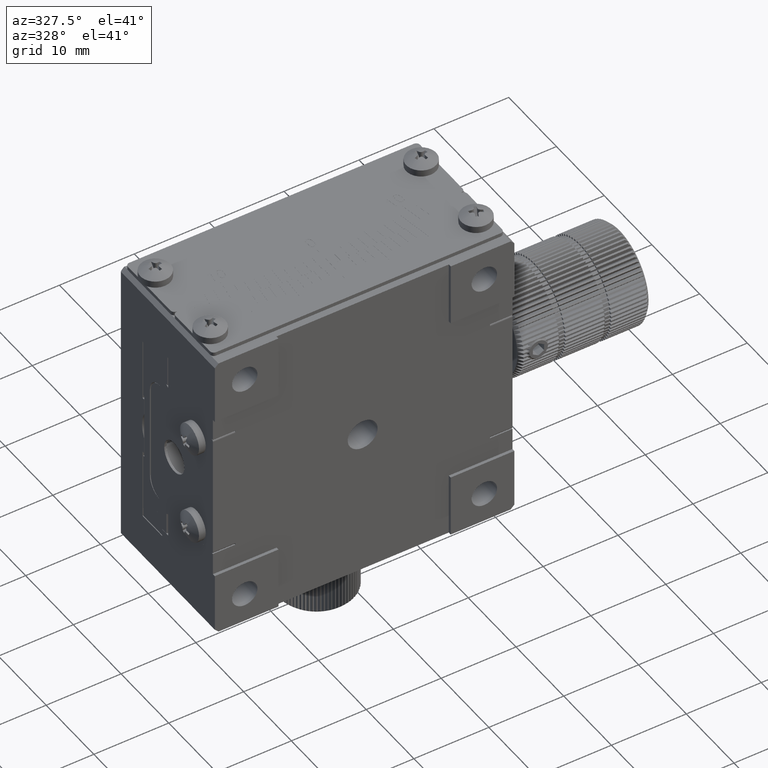
[diagram: clean part render]
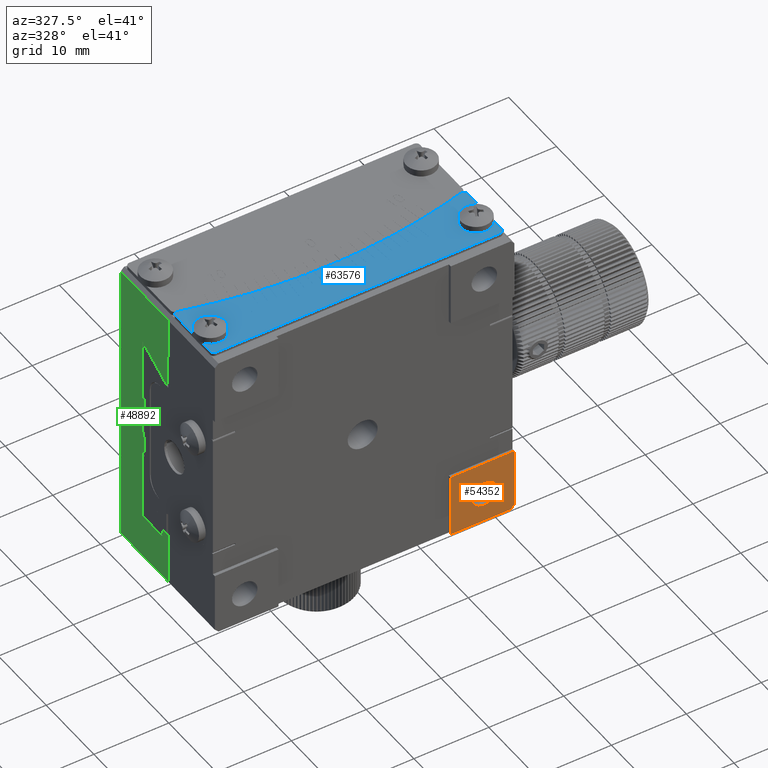
[diagram: same view with three faces highlighted in distinct colors, each labeled with its STEP entity id]
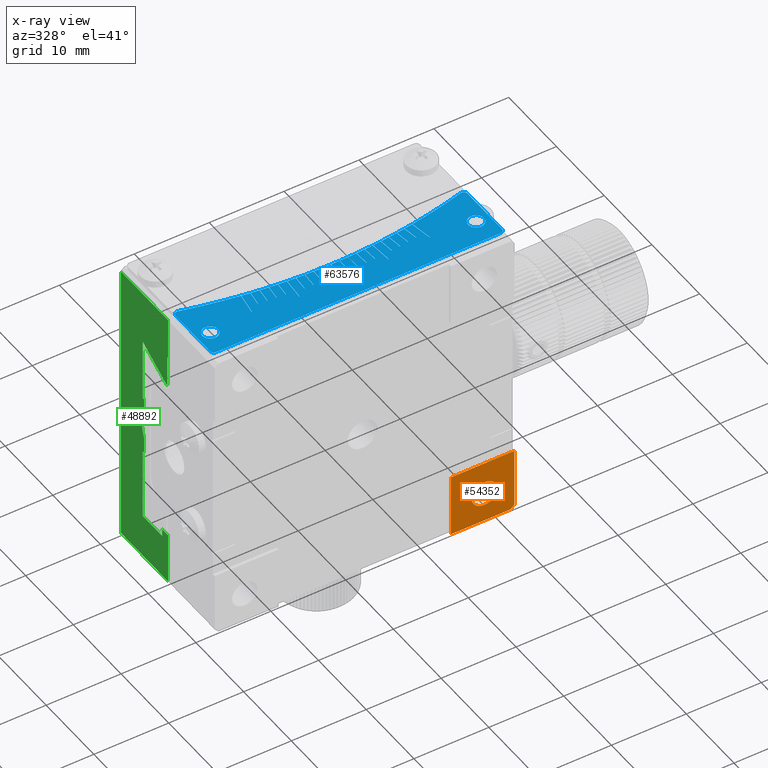
[diagram: x-ray of the same camera — body ghosted, the three highlighted faces saturated]
A machine part, auxiliary view with three faces highlighted in distinct colors.
The next image is the same camera in x-ray (body ghosted, the three faces saturated) — at least one of them is partly hidden behind the body in this view.
Their STEP definitions:

[orange] entity #54352 — the highlighted planar face has unit normal (0, -1, -0).
#19 = ORIENTED_EDGE ( 'NONE', *, *, #24437, .F. ) ;
#1184 = CIRCLE ( 'NONE', #32184, 1.700000000000000178 ) ;
#1277 = PLANE ( 'NONE',  #25525 ) ;
#1536 = DIRECTION ( 'NONE',  ( 0.000000000000000000, -3.061276722312012195E-15, 1.000000000000000000 ) ) ;
#4921 = CARTESIAN_POINT ( 'NONE',  ( -13.94169290550053475, -10.14256600815846809, 8.032748843543261685 ) ) ;
#7385 = CARTESIAN_POINT ( 'NONE',  ( -13.94169290550055074, -10.14256600815846809, 16.53274884354319951 ) ) ;
#10589 = VECTOR ( 'NONE', #25597, 1000.000000000000000 ) ;
#10900 = VERTEX_POINT ( 'NONE', #31351 ) ;
#11993 = DIRECTION ( 'NONE',  ( 0.000000000000000000, 3.491481338843133355E-15, -1.000000000000000000 ) ) ;
#12144 = LINE ( 'NONE', #26535, #27742 ) ;
#14518 = VERTEX_POINT ( 'NONE', #46433 ) ;
#16361 = FACE_BOUND ( 'NONE', #45005, .T. ) ;
#16698 = FACE_OUTER_BOUND ( 'NONE', #52291, .T. ) ;
#16789 = EDGE_CURVE ( 'NONE', #51156, #36445, #56387, .T. ) ;
#19116 = VECTOR ( 'NONE', #21926, 1000.000000000000000 ) ;
#19167 = CARTESIAN_POINT ( 'NONE',  ( -14.44169290550053475, -10.14256600815843967, 8.032748843543208395 ) ) ;
#21926 = DIRECTION ( 'NONE',  ( 0.000000000000000000, 0.000000000000000000, 1.000000000000000000 ) ) ;
#23126 = DIRECTION ( 'NONE',  ( 1.000000000000000000, -7.125593699324845690E-31, 2.040851148208009231E-16 ) ) ;
#24129 = VERTEX_POINT ( 'NONE', #34917 ) ;
#24437 = EDGE_CURVE ( 'NONE', #24129, #58411, #29170, .T. ) ;
#24907 = VECTOR ( 'NONE', #40456, 1000.000000000000000 ) ;
#25525 = AXIS2_PLACEMENT_3D ( 'NONE', #57845, #48128, #11993 ) ;
#25597 = DIRECTION ( 'NONE',  ( -0.7071067811865515695, 0.000000000000000000, -0.7071067811865435759 ) ) ;
#26535 = CARTESIAN_POINT ( 'NONE',  ( -33.94169290550053830, -10.14256600815843790, 8.032748843543208395 ) ) ;
#27742 = VECTOR ( 'NONE', #42287, 1000.000000000000000 ) ;
#28467 = ORIENTED_EDGE ( 'NONE', *, *, #55046, .T. ) ;
#29170 = LINE ( 'NONE', #7385, #52638 ) ;
#31351 = CARTESIAN_POINT ( 'NONE',  ( -17.94169290550053830, -10.14256600815849829, 13.73274884354320768 ) ) ;
#31709 = ORIENTED_EDGE ( 'NONE', *, *, #16789, .F. ) ;
#32184 = AXIS2_PLACEMENT_3D ( 'NONE', #47382, #57756, #1536 ) ;
#34917 = CARTESIAN_POINT ( 'NONE',  ( -22.44169290550054541, -10.14256600815845744, 16.53274884354319951 ) ) ;
#36445 = VERTEX_POINT ( 'NONE', #19167 ) ;
#40456 = DIRECTION ( 'NONE',  ( -4.035766683199858089E-30, 4.664900407751470945E-45, -1.000000000000000000 ) ) ;
#40797 = ORIENTED_EDGE ( 'NONE', *, *, #54600, .F. ) ;
#41160 = EDGE_CURVE ( 'NONE', #10900, #10900, #1184, .T. ) ;
#42287 = DIRECTION ( 'NONE',  ( 1.000000000000000000, 0.000000000000000000, 0.000000000000000000 ) ) ;
#42949 = EDGE_CURVE ( 'NONE', #58411, #51156, #50134, .T. ) ;
#43349 = LINE ( 'NONE', #63087, #19116 ) ;
#45005 = EDGE_LOOP ( 'NONE', ( #59212 ) ) ;
#46433 = CARTESIAN_POINT ( 'NONE',  ( -22.44169290550054541, -10.14256600815843790, 8.032748843543201289 ) ) ;
#47382 = CARTESIAN_POINT ( 'NONE',  ( -17.94169290550053830, -10.14256600815849296, 12.03274884354320662 ) ) ;
#48128 = DIRECTION ( 'NONE',  ( 0.000000000000000000, -1.000000000000000000, -3.491481338843133355E-15 ) ) ;
#50134 = LINE ( 'NONE', #4921, #24907 ) ;
#51156 = VERTEX_POINT ( 'NONE', #60400 ) ;
#51375 = CARTESIAN_POINT ( 'NONE',  ( -13.94169290550049922, -10.14256600815844500, 8.532748843543238593 ) ) ;
#52291 = EDGE_LOOP ( 'NONE', ( #19, #40797, #28467, #31709, #52362 ) ) ;
#52362 = ORIENTED_EDGE ( 'NONE', *, *, #42949, .F. ) ;
#52638 = VECTOR ( 'NONE', #23126, 1000.000000000000000 ) ;
#54352 = ADVANCED_FACE ( 'NONE', ( #16698, #16361 ), #1277, .T. ) ;
#54600 = EDGE_CURVE ( 'NONE', #14518, #24129, #43349, .T. ) ;
#55046 = EDGE_CURVE ( 'NONE', #14518, #36445, #12144, .T. ) ;
#56387 = LINE ( 'NONE', #51375, #10589 ) ;
#57756 = DIRECTION ( 'NONE',  ( 0.000000000000000000, 1.000000000000000000, 3.491481338843133355E-15 ) ) ;
#57845 = CARTESIAN_POINT ( 'NONE',  ( -13.94169290550053475, -10.14256600815843790, 8.032748843543206618 ) ) ;
#58411 = VERTEX_POINT ( 'NONE', #59411 ) ;
#59212 = ORIENTED_EDGE ( 'NONE', *, *, #41160, .T. ) ;
#59411 = CARTESIAN_POINT ( 'NONE',  ( -13.94169290550053475, -10.14256600815846809, 16.53274884354319951 ) ) ;
#60400 = CARTESIAN_POINT ( 'NONE',  ( -13.94169290550053475, -10.14256600815845921, 8.532748843543199513 ) ) ;
#63087 = CARTESIAN_POINT ( 'NONE',  ( -22.44169290550054541, -10.14256600815843790, 8.032748843543195960 ) ) ;

[blue] entity #63576 — the highlighted planar face has unit normal (0, -0, 1).
#33 = CARTESIAN_POINT ( 'NONE',  ( -27.04689738699481794, -2.768879981246100019, 48.53274884354323859 ) ) ;
#185 = ORIENTED_EDGE ( 'NONE', *, *, #47032, .T. ) ;
#242 = CARTESIAN_POINT ( 'NONE',  ( -33.94169290550050988, 69.90478646512218575, 48.53274884354349439 ) ) ;
#397 = CARTESIAN_POINT ( 'NONE',  ( -33.91669290550051130, 69.90478646512218575, 48.53274884354349439 ) ) ;
#447 = VERTEX_POINT ( 'NONE', #38721 ) ;
#466 = CIRCLE ( 'NONE', #31472, 72.99999999999998579 ) ;
#650 = CARTESIAN_POINT ( 'NONE',  ( -44.20273164232804675, -2.370458840869851702, 48.53274884354324570 ) ) ;
#692 = DIRECTION ( 'NONE',  ( -0.1097343110910459635, -0.9939609554551795956, -3.469446951953628783E-15 ) ) ;
#709 = CARTESIAN_POINT ( 'NONE',  ( -33.94169290550050988, 69.90478646512218575, 48.53274884354350149 ) ) ;
#882 = CARTESIAN_POINT ( 'NONE',  ( -33.94169290550050988, 69.90478646512218575, 48.53274884354350149 ) ) ;
#910 = ORIENTED_EDGE ( 'NONE', *, *, #40112, .T. ) ;
#937 = CARTESIAN_POINT ( 'NONE',  ( -38.50044989413465402, -2.952730200755038226, 48.53274884354323859 ) ) ;
#1015 = CARTESIAN_POINT ( 'NONE',  ( -33.94169290550050988, 69.90478646512218575, 48.53274884354350149 ) ) ;
#1099 = VERTEX_POINT ( 'NONE', #7668 ) ;
#1219 = DIRECTION ( 'NONE',  ( -2.859620781426167795E-30, 3.491481338843141638E-15, -1.000000000000000000 ) ) ;
#1358 = CARTESIAN_POINT ( 'NONE',  ( -29.33303458044495571, -2.949590674778582056, 48.53274884354324570 ) ) ;
#1654 = VERTEX_POINT ( 'NONE', #8884 ) ;
#1726 = ORIENTED_EDGE ( 'NONE', *, *, #61097, .T. ) ;
#1814 = VERTEX_POINT ( 'NONE', #33606 ) ;
#2073 = CARTESIAN_POINT ( 'NONE',  ( -30.38373705705758709, -5.010772219688040430, 48.53274884354323149 ) ) ;
#2212 = VECTOR ( 'NONE', #32156, 1000.000000000000000 ) ;
#2264 = EDGE_CURVE ( 'NONE', #33732, #44829, #60517, .T. ) ;
#2294 = ORIENTED_EDGE ( 'NONE', *, *, #51743, .T. ) ;
#2334 = EDGE_CURVE ( 'NONE', #55492, #60109, #56729, .T. ) ;
#2364 = DIRECTION ( 'NONE',  ( -0.1409012319375813060, 0.9900236577165577589, 3.469446951953626022E-15 ) ) ;
#2444 = CARTESIAN_POINT ( 'NONE',  ( -36.32248736590540972, -5.057416014621008316, 48.53274884354323149 ) ) ;
#2620 = VECTOR ( 'NONE', #65528, 1000.000000000000000 ) ;
#2801 = EDGE_CURVE ( 'NONE', #2978, #37175, #53709, .T. ) ;
#2961 = ORIENTED_EDGE ( 'NONE', *, *, #29971, .T. ) ;
#2978 = VERTEX_POINT ( 'NONE', #52360 ) ;
#3100 = VECTOR ( 'NONE', #32924, 1000.000000000000227 ) ;
#3399 = VECTOR ( 'NONE', #61133, 1000.000000000000114 ) ;
#3459 = DIRECTION ( 'NONE',  ( 2.169367489357782465E-30, -3.491481338843142033E-15, 1.000000000000000000 ) ) ;
#3512 = DIRECTION ( 'NONE',  ( -0.9969173337331282969, -0.07845909572784010022, 0.000000000000000000 ) ) ;
#3596 = LINE ( 'NONE', #44134, #34615 ) ;
#3621 = DIRECTION ( 'NONE',  ( 0.000000000000000000, 1.000000000000000000, 3.516973622528321854E-15 ) ) ;
#3628 = ORIENTED_EDGE ( 'NONE', *, *, #47552, .T. ) ;
#3658 = VERTEX_POINT ( 'NONE', #59743 ) ;
#3755 = VECTOR ( 'NONE', #48510, 1000.000000000000114 ) ;
#3840 = CARTESIAN_POINT ( 'NONE',  ( -27.95387903271037544, -5.858965153576645157, 48.53274884354323149 ) ) ;
#3891 = ORIENTED_EDGE ( 'NONE', *, *, #31524, .T. ) ;
#3911 = LINE ( 'NONE', #14316, #51370 ) ;
#3927 = LINE ( 'NONE', #25356, #52673 ) ;
#3969 = DIRECTION ( 'NONE',  ( 0.1564344650402297310, 0.9876883405951378814, 4.625929269271472700E-15 ) ) ;
#3996 = CARTESIAN_POINT ( 'NONE',  ( -52.94169290550050988, -8.342566008158575741, 48.53274884354321728 ) ) ;
#4114 = LINE ( 'NONE', #9176, #31984 ) ;
#4128 = DIRECTION ( 'NONE',  ( -0.1253332335643012607, 0.9921147013144782090, 3.469446951953604328E-15 ) ) ;
#4160 = DIRECTION ( 'NONE',  ( 0.000000000000000000, 1.000000000000000000, 3.516973622528321854E-15 ) ) ;
#4236 = CARTESIAN_POINT ( 'NONE',  ( -44.48453410620322046, -4.350506156302961003, 48.53274884354323859 ) ) ;
#4348 = ORIENTED_EDGE ( 'NONE', *, *, #31656, .T. ) ;
#4522 = AXIS2_PLACEMENT_3D ( 'NONE', #46374, #60753, #10232 ) ;
#4638 = CARTESIAN_POINT ( 'NONE',  ( -37.49964875394343977, -5.010772219688027995, 48.53274884354323149 ) ) ;
#4649 = VECTOR ( 'NONE', #14600, 1000.000000000000114 ) ;
#4754 = VECTOR ( 'NONE', #33513, 1000.000000000000114 ) ;
#4780 = ORIENTED_EDGE ( 'NONE', *, *, #40586, .T. ) ;
#4911 = DIRECTION ( 'NONE',  ( -2.859620781426167795E-30, 3.491481338843141638E-15, -1.000000000000000000 ) ) ;
#4947 = CARTESIAN_POINT ( 'NONE',  ( -32.73864725854215862, -5.085564007775629669, 48.53274884354323149 ) ) ;
#5197 = EDGE_CURVE ( 'NONE', #20620, #1814, #46667, .T. ) ;
#5267 = DIRECTION ( 'NONE',  ( -0.03141075907812933277, 0.9995065603657314890, 3.469446951953618528E-15 ) ) ;
#5417 = VERTEX_POINT ( 'NONE', #50301 ) ;
#5458 = DIRECTION ( 'NONE',  ( 0.000000000000000000, 1.000000000000000000, 3.516973622528321854E-15 ) ) ;
#5559 = CIRCLE ( 'NONE', #11991, 72.99999999999998579 ) ;
#5568 = CARTESIAN_POINT ( 'NONE',  ( -26.85868076035778529, -4.760003910452254239, 48.53274884354323149 ) ) ;
#5585 = VERTEX_POINT ( 'NONE', #11123 ) ;
#5763 = ORIENTED_EDGE ( 'NONE', *, *, #44254, .T. ) ;
#5789 = EDGE_CURVE ( 'NONE', #48969, #54207, #13422, .T. ) ;
#5819 = DIRECTION ( 'NONE',  ( -0.9876883405951580874, 0.1564344650401019166, 0.000000000000000000 ) ) ;
#5877 = DIRECTION ( 'NONE',  ( -0.07845909572784631747, 0.9969173337331278528, 2.312964634635739900E-15 ) ) ;
#5905 = AXIS2_PLACEMENT_3D ( 'NONE', #3996, #23203, #60259 ) ;
#5940 = CARTESIAN_POINT ( 'NONE',  ( -44.25223282521388768, -2.363413779272967474, 48.53274884354324570 ) ) ;
#6254 = CARTESIAN_POINT ( 'NONE',  ( -14.94169290550051343, -1.096974076430593303, 48.53274884354325280 ) ) ;
#6316 = ORIENTED_EDGE ( 'NONE', *, *, #20555, .T. ) ;
#6319 = EDGE_CURVE ( 'NONE', #9413, #10243, #30752, .T. ) ;
#6510 = DIRECTION ( 'NONE',  ( 0.1564344650402308412, -0.9876883405951376593, -4.625929269271471912E-15 ) ) ;
#6600 = CARTESIAN_POINT ( 'NONE',  ( -38.55035123055606050, -2.949590674778575394, 48.53274884354325280 ) ) ;
#6616 = VECTOR ( 'NONE', #24177, 1000.000000000000227 ) ;
#6824 = VERTEX_POINT ( 'NONE', #45644 ) ;
#6839 = LINE ( 'NONE', #53366, #60120 ) ;
#6859 = CARTESIAN_POINT ( 'NONE',  ( -22.49728541871686360, -2.192547308578846277, 48.53274884354324570 ) ) ;
#6919 = ORIENTED_EDGE ( 'NONE', *, *, #2264, .T. ) ;
#6976 = EDGE_CURVE ( 'NONE', #36196, #45152, #17454, .T. ) ;
#7003 = CARTESIAN_POINT ( 'NONE',  ( -40.78671032577605615, -2.773585396912012335, 48.53274884354323859 ) ) ;
#7027 = CARTESIAN_POINT ( 'NONE',  ( -23.39885170479781351, -4.350506156302974325, 48.53274884354323149 ) ) ;
#7073 = CARTESIAN_POINT ( 'NONE',  ( -45.33671597525441399, -2.200369031830878619, 48.53274884354324570 ) ) ;
#7172 = ORIENTED_EDGE ( 'NONE', *, *, #9328, .T. ) ;
#7339 = ORIENTED_EDGE ( 'NONE', *, *, #60850, .T. ) ;
#7411 = VECTOR ( 'NONE', #40922, 1000.000000000000000 ) ;
#7525 = CARTESIAN_POINT ( 'NONE',  ( -24.56650379223980352, -4.506945217236296486, 48.53274884354323859 ) ) ;
#7568 = VECTOR ( 'NONE', #42102, 1000.000000000000114 ) ;
#7576 = AXIS2_PLACEMENT_3D ( 'NONE', #28770, #8655, #3621 ) ;
#7668 = CARTESIAN_POINT ( 'NONE',  ( -39.64428362442044573, -2.872136107163650198, 48.53274884354328123 ) ) ;
#7804 = VERTEX_POINT ( 'NONE', #52505 ) ;
#8049 = DIRECTION ( 'NONE',  ( 0.000000000000000000, 1.000000000000000000, 3.516973622528321854E-15 ) ) ;
#8115 = AXIS2_PLACEMENT_3D ( 'NONE', #60691, #3459, #14840 ) ;
#8197 = AXIS2_PLACEMENT_3D ( 'NONE', #40859, #51213, #29820 ) ;
#8352 = EDGE_CURVE ( 'NONE', #36282, #30086, #18875, .T. ) ;
#8358 = CARTESIAN_POINT ( 'NONE',  ( -24.76756452430268851, -2.516449152929117972, 48.53274884354324570 ) ) ;
#8510 = CARTESIAN_POINT ( 'NONE',  ( -31.61087377311389801, -5.058986552574918250, 48.53274884354323149 ) ) ;
#8520 = ORIENTED_EDGE ( 'NONE', *, *, #22177, .T. ) ;
#8655 = DIRECTION ( 'NONE',  ( -2.859620781426167795E-30, 3.491481338843141638E-15, -1.000000000000000000 ) ) ;
#8884 = CARTESIAN_POINT ( 'NONE',  ( -28.23910218658057403, -2.872136107163643981, 48.53274884354328123 ) ) ;
#8885 = LINE ( 'NONE', #3840, #31030 ) ;
#8924 = VECTOR ( 'NONE', #18092, 1000.000000000000114 ) ;
#9024 = CARTESIAN_POINT ( 'NONE',  ( -45.85540378740486034, -5.155612330364281348, 48.53274884354323149 ) ) ;
#9039 = DIRECTION ( 'NONE',  ( 0.000000000000000000, 1.000000000000000000, 0.000000000000000000 ) ) ;
#9068 = DIRECTION ( 'NONE',  ( 0.000000000000000000, 1.000000000000000000, 3.516973622528321854E-15 ) ) ;
#9168 = VECTOR ( 'NONE', #4128, 1000.000000000000000 ) ;
#9176 = CARTESIAN_POINT ( 'NONE',  ( -53.44169290550052409, -0.4425660081585763850, 48.53274884354325280 ) ) ;
#9182 = CIRCLE ( 'NONE', #37017, 72.99999999999998579 ) ;
#9235 = ORIENTED_EDGE ( 'NONE', *, *, #6976, .T. ) ;
#9242 = DIRECTION ( 'NONE',  ( 0.000000000000000000, 1.000000000000000000, 3.516973622528321854E-15 ) ) ;
#9328 = EDGE_CURVE ( 'NONE', #26698, #17942, #53041, .T. ) ;
#9359 = LINE ( 'NONE', #30471, #64187 ) ;
#9413 = VERTEX_POINT ( 'NONE', #5568 ) ;
#9478 = AXIS2_PLACEMENT_3D ( 'NONE', #65120, #15225, #4160 ) ;
#9747 = DIRECTION ( 'NONE',  ( -1.000000000000000000, -7.574306106185697085E-45, 2.169367489357782465E-30 ) ) ;
#10060 = VERTEX_POINT ( 'NONE', #61503 ) ;
#10198 = CIRCLE ( 'NONE', #31574, 1.049999999999998934 ) ;
#10232 = DIRECTION ( 'NONE',  ( 0.000000000000000000, 1.000000000000000000, 3.516973622528321854E-15 ) ) ;
#10243 = VERTEX_POINT ( 'NONE', #35662 ) ;
#10272 = CARTESIAN_POINT ( 'NONE',  ( -33.96669290550051556, -6.095209254055768966, 48.53274884354323149 ) ) ;
#10347 = LINE ( 'NONE', #45513, #61199 ) ;
#10410 = ORIENTED_EDGE ( 'NONE', *, *, #57078, .T. ) ;
#10425 = VERTEX_POINT ( 'NONE', #42969 ) ;
#10638 = AXIS2_PLACEMENT_3D ( 'NONE', #17183, #33267, #9068 ) ;
#10747 = AXIS2_PLACEMENT_3D ( 'NONE', #50535, #54554, #9039 ) ;
#10822 = DIRECTION ( 'NONE',  ( 0.1409012319375829991, -0.9900236577165575369, -3.469446951953625233E-15 ) ) ;
#11081 = LINE ( 'NONE', #56911, #2212 ) ;
#11098 = CARTESIAN_POINT ( 'NONE',  ( -22.02798202359616653, -5.155612330364267137, 48.53274884354323149 ) ) ;
#11123 = CARTESIAN_POINT ( 'NONE',  ( -52.94169290550050988, -8.842566008158575741, 48.53274884354321728 ) ) ;
#11648 = CARTESIAN_POINT ( 'NONE',  ( -25.90623964172086957, -2.651615670358695276, 48.53274884354323859 ) ) ;
#11659 = CARTESIAN_POINT ( 'NONE',  ( -35.14473855245888245, -5.085564007775642104, 48.53274884354323149 ) ) ;
#11741 = DIRECTION ( 'NONE',  ( -0.9876883405951580874, -0.1564344650401019166, 0.000000000000000000 ) ) ;
#11791 = VERTEX_POINT ( 'NONE', #22468 ) ;
#11794 = EDGE_CURVE ( 'NONE', #57966, #57471, #52609, .T. ) ;
#11917 = LINE ( 'NONE', #52776, #51700 ) ;
#11972 = DIRECTION ( 'NONE',  ( -0.07845909572784552644, -0.9969173337331278528, -2.312964634635750944E-15 ) ) ;
#11991 = AXIS2_PLACEMENT_3D ( 'NONE', #60219, #14033, #35125 ) ;
#12118 = VERTEX_POINT ( 'NONE', #22384 ) ;
#12182 = DIRECTION ( 'NONE',  ( -0.09410831331851451931, 0.9955619646030799963, 3.469446951953624838E-15 ) ) ;
#12310 = DIRECTION ( 'NONE',  ( 0.000000000000000000, 1.000000000000000000, 0.000000000000000000 ) ) ;
#12319 = DIRECTION ( 'NONE',  ( -0.9998766324816604767, -0.01570731731182244476, 0.000000000000000000 ) ) ;
#12325 = CARTESIAN_POINT ( 'NONE',  ( -29.25735487780774591, -4.948783657611589781, 48.53274884354323149 ) ) ;
#12367 = EDGE_CURVE ( 'NONE', #6824, #5417, #58409, .T. ) ;
#12677 = VERTEX_POINT ( 'NONE', #23117 ) ;
#12699 = EDGE_CURVE ( 'NONE', #1654, #34188, #22538, .T. ) ;
#12720 = DIRECTION ( 'NONE',  ( 0.000000000000000000, 1.000000000000000000, 3.516973622528321854E-15 ) ) ;
#12762 = ORIENTED_EDGE ( 'NONE', *, *, #33693, .T. ) ;
#12819 = LINE ( 'NONE', #21888, #52355 ) ;
#12860 = VERTEX_POINT ( 'NONE', #40839 ) ;
#12995 = AXIS2_PLACEMENT_3D ( 'NONE', #56681, #30961, #5458 ) ;
#13004 = CARTESIAN_POINT ( 'NONE',  ( -35.06333008621115255, -3.086596108677910788, 48.53274884354323859 ) ) ;
#13134 = DIRECTION ( 'NONE',  ( 0.000000000000000000, 1.000000000000000000, 3.516973622528321854E-15 ) ) ;
#13271 = VERTEX_POINT ( 'NONE', #38131 ) ;
#13388 = DIRECTION ( 'NONE',  ( 0.1253332335643012607, -0.9921147013144782090, -3.469446951953604328E-15 ) ) ;
#13418 = EDGE_CURVE ( 'NONE', #51497, #55492, #41096, .T. ) ;
#13422 = LINE ( 'NONE', #28520, #38947 ) ;
#13531 = VERTEX_POINT ( 'NONE', #15937 ) ;
#13572 = CARTESIAN_POINT ( 'NONE',  ( -37.44970426019533960, -5.013127542223507760, 48.53274884354323149 ) ) ;
#13642 = DIRECTION ( 'NONE',  ( -0.03141075907812933277, -0.9995065603657314890, -3.469446951953618528E-15 ) ) ;
#13668 = CARTESIAN_POINT ( 'NONE',  ( -41.02470505064324158, -4.760003910452252462, 48.53274884354323149 ) ) ;
#13770 = VERTEX_POINT ( 'NONE', #19567 ) ;
#13813 = CARTESIAN_POINT ( 'NONE',  ( -24.76756452430269206, -2.516449152929103761, 48.53274884354324570 ) ) ;
#13910 = VECTOR ( 'NONE', #11972, 1000.000000000000114 ) ;
#14033 = DIRECTION ( 'NONE',  ( -2.859620781426167795E-30, 3.491481338843141638E-15, -1.000000000000000000 ) ) ;
#14258 = VERTEX_POINT ( 'NONE', #57274 ) ;
#14316 = CARTESIAN_POINT ( 'NONE',  ( -35.09474472083479668, -5.086349373641232852, 48.53274884354323149 ) ) ;
#14408 = CARTESIAN_POINT ( 'NONE',  ( -25.95593768949363422, -2.657102385913240106, 48.53274884354324570 ) ) ;
#14600 = DIRECTION ( 'NONE',  ( -0.9980267284282838824, -0.06279051952911823831, 0.000000000000000000 ) ) ;
#14757 = EDGE_CURVE ( 'NONE', #50387, #48239, #11917, .T. ) ;
#14794 = LINE ( 'NONE', #65353, #20046 ) ;
#14840 = DIRECTION ( 'NONE',  ( 0.000000000000000000, -1.000000000000000000, -3.491481338843142033E-15 ) ) ;
#14957 = CARTESIAN_POINT ( 'NONE',  ( -14.94169290550051343, -8.842566008158575741, 48.53274884354321728 ) ) ;
#15046 = EDGE_CURVE ( 'NONE', #50604, #63884, #55720, .T. ) ;
#15119 = CARTESIAN_POINT ( 'NONE',  ( -30.47794995847687005, -3.012992469764080639, 48.53274884354324570 ) ) ;
#15158 = CIRCLE ( 'NONE', #63278, 0.5000000000000004441 ) ;
#15225 = DIRECTION ( 'NONE',  ( -2.859620781426167795E-30, 3.491481338843141638E-15, -1.000000000000000000 ) ) ;
#15352 = VECTOR ( 'NONE', #5819, 1000.000000000000114 ) ;
#15678 = CIRCLE ( 'NONE', #30668, 72.99999999999998579 ) ;
#15760 = EDGE_CURVE ( 'NONE', #37244, #12118, #24771, .T. ) ;
#15832 = VERTEX_POINT ( 'NONE', #24440 ) ;
#15937 = CARTESIAN_POINT ( 'NONE',  ( -37.49964875394343267, -5.010772219688027107, 48.53274884354323149 ) ) ;
#16158 = CARTESIAN_POINT ( 'NONE',  ( -23.63115298578714274, -2.363413779272987902, 48.53274884354324570 ) ) ;
#16238 = VECTOR ( 'NONE', #32763, 1000.000000000000114 ) ;
#16404 = ORIENTED_EDGE ( 'NONE', *, *, #2801, .T. ) ;
#16563 = ORIENTED_EDGE ( 'NONE', *, *, #26461, .T. ) ;
#16564 = ORIENTED_EDGE ( 'NONE', *, *, #15046, .T. ) ;
#16676 = EDGE_CURVE ( 'NONE', #12677, #56393, #63996, .T. ) ;
#16811 = ORIENTED_EDGE ( 'NONE', *, *, #66233, .F. ) ;
#16899 = EDGE_CURVE ( 'NONE', #11791, #63789, #28260, .T. ) ;
#16964 = EDGE_CURVE ( 'NONE', #57471, #15832, #66191, .T. ) ;
#17011 = CARTESIAN_POINT ( 'NONE',  ( -22.02798202359616653, -5.155612330364267137, 48.53274884354323149 ) ) ;
#17111 = EDGE_CURVE ( 'NONE', #20149, #62693, #42323, .T. ) ;
#17142 = ORIENTED_EDGE ( 'NONE', *, *, #41112, .T. ) ;
#17183 = CARTESIAN_POINT ( 'NONE',  ( -33.94169290550050988, 69.90478646512218575, 48.53274884354350149 ) ) ;
#17296 = VERTEX_POINT ( 'NONE', #13813 ) ;
#17330 = VECTOR ( 'NONE', #9747, 1000.000000000000000 ) ;
#17425 = CARTESIAN_POINT ( 'NONE',  ( -42.14691674368949492, -4.645024296823605070, 48.53274884354323149 ) ) ;
#17454 = LINE ( 'NONE', #42268, #62559 ) ;
#17469 = VERTEX_POINT ( 'NONE', #15119 ) ;
#17488 = EDGE_CURVE ( 'NONE', #59548, #27290, #40280, .T. ) ;
#17893 = CARTESIAN_POINT ( 'NONE',  ( -14.44169290550051166, -8.842566008158575741, 48.53274884354321728 ) ) ;
#17942 = VERTEX_POINT ( 'NONE', #650 ) ;
#18061 = CARTESIAN_POINT ( 'NONE',  ( -33.94169290550050988, 69.90478646512218575, 48.53274884354349439 ) ) ;
#18092 = DIRECTION ( 'NONE',  ( -0.1564344650402304526, -0.9876883405951377704, -4.625929269271494788E-15 ) ) ;
#18111 = ORIENTED_EDGE ( 'NONE', *, *, #16676, .T. ) ;
#18121 = LINE ( 'NONE', #34218, #36627 ) ;
#18875 = CIRCLE ( 'NONE', #21011, 72.99999999999998579 ) ;
#18884 = ORIENTED_EDGE ( 'NONE', *, *, #59653, .T. ) ;
#19078 = CARTESIAN_POINT ( 'NONE',  ( -44.53403528908906139, -4.343461094706083436, 48.53274884354323859 ) ) ;
#19245 = DIRECTION ( 'NONE',  ( -0.1097343110910452141, 0.9939609554551797066, 3.469446951953605117E-15 ) ) ;
#19308 = LINE ( 'NONE', #19646, #65331 ) ;
#19312 = DIRECTION ( 'NONE',  ( -0.9998766324816605877, 0.01570731731181808713, 0.000000000000000000 ) ) ;
#19339 = ORIENTED_EDGE ( 'NONE', *, *, #11794, .T. ) ;
#19362 = ORIENTED_EDGE ( 'NONE', *, *, #62555, .T. ) ;
#19421 = ORIENTED_EDGE ( 'NONE', *, *, #36268, .T. ) ;
#19445 = ORIENTED_EDGE ( 'NONE', *, *, #8352, .T. ) ;
#19477 = DIRECTION ( 'NONE',  ( -0.1409012319375829991, -0.9900236577165575369, -3.469446951953625233E-15 ) ) ;
#19492 = CARTESIAN_POINT ( 'NONE',  ( -37.40543585252414971, -3.012992469764073977, 48.53274884354324570 ) ) ;
#19567 = CARTESIAN_POINT ( 'NONE',  ( -29.20745354138633232, -4.945644131635131835, 48.53274884354323149 ) ) ;
#19590 = ORIENTED_EDGE ( 'NONE', *, *, #46148, .T. ) ;
#19644 = VERTEX_POINT ( 'NONE', #12325 ) ;
#19646 = CARTESIAN_POINT ( 'NONE',  ( -43.36648775382694510, -4.500678555558093485, 48.53274884354323859 ) ) ;
#19657 = VERTEX_POINT ( 'NONE', #28734 ) ;
#19686 = VERTEX_POINT ( 'NONE', #34083 ) ;
#19715 = CARTESIAN_POINT ( 'NONE',  ( -41.92744812150739619, -2.657102385913240106, 48.53274884354324570 ) ) ;
#19812 = DIRECTION ( 'NONE',  ( 0.000000000000000000, 1.000000000000000000, 3.516973622528321854E-15 ) ) ;
#19993 = DIRECTION ( 'NONE',  ( -0.9969173337331282969, 0.07845909572784010022, 0.000000000000000000 ) ) ;
#20028 = ORIENTED_EDGE ( 'NONE', *, *, #37934, .T. ) ;
#20046 = VECTOR ( 'NONE', #19477, 1000.000000000000000 ) ;
#20149 = VERTEX_POINT ( 'NONE', #49271 ) ;
#20349 = DIRECTION ( 'NONE',  ( 0.04710645070964465664, 0.9988898749619699036, 3.469446951953600778E-15 ) ) ;
#20435 = CIRCLE ( 'NONE', #59966, 72.99999999999998579 ) ;
#20519 = LINE ( 'NONE', #16158, #50981 ) ;
#20555 = EDGE_CURVE ( 'NONE', #29030, #55865, #34505, .T. ) ;
#20620 = VERTEX_POINT ( 'NONE', #49875 ) ;
#20773 = AXIS2_PLACEMENT_3D ( 'NONE', #44744, #44418, #9242 ) ;
#20808 = ORIENTED_EDGE ( 'NONE', *, *, #28604, .T. ) ;
#20975 = CARTESIAN_POINT ( 'NONE',  ( -51.69169290550050988, -5.642566008158571123, 48.53274884354323859 ) ) ;
#21011 = AXIS2_PLACEMENT_3D ( 'NONE', #882, #41745, #30735 ) ;
#21015 = DIRECTION ( 'NONE',  ( 0.000000000000000000, 1.000000000000000000, 0.000000000000000000 ) ) ;
#21154 = EDGE_CURVE ( 'NONE', #45432, #45432, #10198, .T. ) ;
#21181 = LINE ( 'NONE', #52659, #49573 ) ;
#21315 = EDGE_CURVE ( 'NONE', #50918, #35605, #28663, .T. ) ;
#21350 = LINE ( 'NONE', #11659, #58002 ) ;
#21413 = ORIENTED_EDGE ( 'NONE', *, *, #32834, .T. ) ;
#21556 = ORIENTED_EDGE ( 'NONE', *, *, #41959, .F. ) ;
#21642 = CARTESIAN_POINT ( 'NONE',  ( -39.92950677829064432, -5.858965153576645157, 48.53274884354323149 ) ) ;
#21695 = DIRECTION ( 'NONE',  ( 0.01570731731182286109, 0.9998766324816604767, 3.469446951953612217E-15 ) ) ;
#21701 = EDGE_CURVE ( 'NONE', #5585, #23661, #52997, .T. ) ;
#21888 = CARTESIAN_POINT ( 'NONE',  ( -26.90845885858794517, -4.764709326118180321, 48.53274884354323149 ) ) ;
#21954 = CARTESIAN_POINT ( 'NONE',  ( -31.67369529127016392, -3.059973431843450609, 48.53274884354324570 ) ) ;
#22066 = ORIENTED_EDGE ( 'NONE', *, *, #35121, .T. ) ;
#22129 = DIRECTION ( 'NONE',  ( -0.9939609554551950277, 0.1097343110909054231, 0.000000000000000000 ) ) ;
#22153 = DIRECTION ( 'NONE',  ( 0.07845909572784631747, -0.9969173337331278528, -2.312964634635739900E-15 ) ) ;
#22168 = ORIENTED_EDGE ( 'NONE', *, *, #36038, .T. ) ;
#22177 = EDGE_CURVE ( 'NONE', #34188, #13770, #53512, .T. ) ;
#22260 = VERTEX_POINT ( 'NONE', #54842 ) ;
#22384 = CARTESIAN_POINT ( 'NONE',  ( -40.83648842400621248, -2.768879981246086253, 48.53274884354325280 ) ) ;
#22468 = CARTESIAN_POINT ( 'NONE',  ( -36.32248736590540972, -5.057416014621008316, 48.53274884354323149 ) ) ;
#22491 = EDGE_CURVE ( 'NONE', #49663, #14258, #63148, .T. ) ;
#22538 = CIRCLE ( 'NONE', #59948, 72.99999999999998579 ) ;
#22587 = ORIENTED_EDGE ( 'NONE', *, *, #59822, .T. ) ;
#22677 = CARTESIAN_POINT ( 'NONE',  ( -23.34935052191197613, -4.343461094706096759, 48.53274884354323149 ) ) ;
#22840 = CARTESIAN_POINT ( 'NONE',  ( -33.91669290550051130, -3.095209254055764081, 48.53274884354323859 ) ) ;
#22949 = CARTESIAN_POINT ( 'NONE',  ( -30.43368155080568727, -5.013127542223521083, 48.53274884354323149 ) ) ;
#23111 = CARTESIAN_POINT ( 'NONE',  ( -27.04689738699481438, -2.768879981246072930, 48.53274884354324570 ) ) ;
#23117 = CARTESIAN_POINT ( 'NONE',  ( -45.38610039228415616, -2.192547308578825405, 48.53274884354319596 ) ) ;
#23190 = DIRECTION ( 'NONE',  ( -2.859620781426167795E-30, 3.491481338843141638E-15, -1.000000000000000000 ) ) ;
#23203 = DIRECTION ( 'NONE',  ( -2.859620781426167795E-30, 3.491481338843141638E-15, -1.000000000000000000 ) ) ;
#23517 = CIRCLE ( 'NONE', #54535, 72.99999999999998579 ) ;
#23556 = VERTEX_POINT ( 'NONE', #13572 ) ;
#23661 = VERTEX_POINT ( 'NONE', #44707 ) ;
#23776 = CARTESIAN_POINT ( 'NONE',  ( -33.94169290550050988, 69.90478646512218575, 48.53274884354350149 ) ) ;
#23832 = CARTESIAN_POINT ( 'NONE',  ( -24.56650379223979996, -4.506945217236293821, 48.53274884354323149 ) ) ;
#24073 = DIRECTION ( 'NONE',  ( 0.06279051952931567759, 0.9980267284282714479, 3.469446951953625627E-15 ) ) ;
#24177 = DIRECTION ( 'NONE',  ( 0.09410831331851622628, -0.9955619646030797742, -3.469446951953624050E-15 ) ) ;
#24253 = CARTESIAN_POINT ( 'NONE',  ( -33.94169290550050988, 69.90478646512218575, 48.53274884354350149 ) ) ;
#24425 = DIRECTION ( 'NONE',  ( -0.04710645070964292191, 0.9988898749619699036, 3.469446951953600778E-15 ) ) ;
#24440 = CARTESIAN_POINT ( 'NONE',  ( -43.06621555163260240, -2.522715814607313867, 48.53274884354325280 ) ) ;
#24554 = FACE_BOUND ( 'NONE', #58547, .T. ) ;
#24771 = LINE ( 'NONE', #41187, #24876 ) ;
#24876 = VECTOR ( 'NONE', #36161, 1000.000000000000114 ) ;
#25062 = LINE ( 'NONE', #45500, #31567 ) ;
#25136 = ORIENTED_EDGE ( 'NONE', *, *, #57005, .T. ) ;
#25253 = LINE ( 'NONE', #45688, #55957 ) ;
#25356 = CARTESIAN_POINT ( 'NONE',  ( -39.87966091160398463, -5.862888108363037531, 48.53274884354323149 ) ) ;
#25376 = EDGE_CURVE ( 'NONE', #50220, #20620, #27183, .T. ) ;
#25397 = DIRECTION ( 'NONE',  ( 0.1097343110910452141, -0.9939609554551797066, -3.469446951953605117E-15 ) ) ;
#25632 = VERTEX_POINT ( 'NONE', #62545 ) ;
#25719 = EDGE_CURVE ( 'NONE', #62693, #50387, #53816, .T. ) ;
#26291 = ORIENTED_EDGE ( 'NONE', *, *, #13418, .T. ) ;
#26393 = EDGE_CURVE ( 'NONE', #45656, #51497, #56932, .T. ) ;
#26461 = EDGE_CURVE ( 'NONE', #48239, #59548, #55749, .T. ) ;
#26485 = DIRECTION ( 'NONE',  ( 1.000000000000000000, 5.259020551576894849E-33, 1.836177211642329098E-47 ) ) ;
#26613 = EDGE_CURVE ( 'NONE', #23556, #13531, #62396, .T. ) ;
#26698 = VERTEX_POINT ( 'NONE', #54984 ) ;
#26727 = LINE ( 'NONE', #57182, #37678 ) ;
#26730 = VECTOR ( 'NONE', #6510, 1000.000000000000114 ) ;
#26950 = ORIENTED_EDGE ( 'NONE', *, *, #54679, .T. ) ;
#27183 = LINE ( 'NONE', #7073, #8924 ) ;
#27224 = VERTEX_POINT ( 'NONE', #46789 ) ;
#27290 = VERTEX_POINT ( 'NONE', #37791 ) ;
#27292 = DIRECTION ( 'NONE',  ( -0.9939609554551969151, -0.1097343110908903241, 0.000000000000000000 ) ) ;
#27373 = VERTEX_POINT ( 'NONE', #6600 ) ;
#27526 = ORIENTED_EDGE ( 'NONE', *, *, #65069, .T. ) ;
#27528 = ORIENTED_EDGE ( 'NONE', *, *, #17111, .T. ) ;
#27558 = DIRECTION ( 'NONE',  ( -0.9995065603657293796, 0.03141075907819843721, 0.000000000000000000 ) ) ;
#27604 = VERTEX_POINT ( 'NONE', #10272 ) ;
#27740 = DIRECTION ( 'NONE',  ( -0.1253332335643055351, -0.9921147013144776539, -3.469446951953626811E-15 ) ) ;
#27764 = ORIENTED_EDGE ( 'NONE', *, *, #56527, .T. ) ;
#27813 = CARTESIAN_POINT ( 'NONE',  ( -36.20969051973085584, -3.059973431843450609, 48.53274884354324570 ) ) ;
#27873 = ORIENTED_EDGE ( 'NONE', *, *, #26613, .T. ) ;
#27964 = VECTOR ( 'NONE', #11741, 1000.000000000000114 ) ;
#28047 = VECTOR ( 'NONE', #54438, 1000.000000000000000 ) ;
#28150 = LINE ( 'NONE', #48530, #46309 ) ;
#28260 = LINE ( 'NONE', #2444, #38366 ) ;
#28278 = ORIENTED_EDGE ( 'NONE', *, *, #25376, .T. ) ;
#28483 = EDGE_CURVE ( 'NONE', #50669, #37997, #466, .T. ) ;
#28520 = CARTESIAN_POINT ( 'NONE',  ( -23.39885170479781351, -4.350506156302974325, 48.53274884354323859 ) ) ;
#28604 = EDGE_CURVE ( 'NONE', #53211, #48969, #48545, .T. ) ;
#28663 = LINE ( 'NONE', #34020, #47591 ) ;
#28677 = VERTEX_POINT ( 'NONE', #14957 ) ;
#28732 = CARTESIAN_POINT ( 'NONE',  ( -35.11332391783522411, -3.085810742812306273, 48.53274884354325280 ) ) ;
#28734 = CARTESIAN_POINT ( 'NONE',  ( -38.67593226961470521, -4.945644131635119400, 48.53274884354323149 ) ) ;
#28761 = VECTOR ( 'NONE', #27740, 1000.000000000000000 ) ;
#28770 = CARTESIAN_POINT ( 'NONE',  ( -33.94169290550050988, 69.90478646512218575, 48.53274884354349439 ) ) ;
#28932 = VERTEX_POINT ( 'NONE', #63785 ) ;
#29030 = VERTEX_POINT ( 'NONE', #55063 ) ;
#29056 = CARTESIAN_POINT ( 'NONE',  ( -24.51689805717408532, -4.500678555558078386, 48.53274884354323149 ) ) ;
#29150 = DIRECTION ( 'NONE',  ( 0.000000000000000000, 1.000000000000000000, 3.516973622528321854E-15 ) ) ;
#29153 = DIRECTION ( 'NONE',  ( -2.859620781426167795E-30, 3.491481338843141638E-15, -1.000000000000000000 ) ) ;
#29185 = ORIENTED_EDGE ( 'NONE', *, *, #21701, .F. ) ;
#29281 = CIRCLE ( 'NONE', #46365, 72.99999999999998579 ) ;
#29541 = DIRECTION ( 'NONE',  ( -0.9921147013145081850, 0.1253332335640639228, 0.000000000000000000 ) ) ;
#29642 = ORIENTED_EDGE ( 'NONE', *, *, #64900, .T. ) ;
#29820 = DIRECTION ( 'NONE',  ( 0.000000000000000000, 1.000000000000000000, 3.516973622528321854E-15 ) ) ;
#29971 = EDGE_CURVE ( 'NONE', #63884, #36361, #47700, .T. ) ;
#30059 = DIRECTION ( 'NONE',  ( 0.000000000000000000, 1.000000000000000000, 6.608470384673557335E-15 ) ) ;
#30086 = VERTEX_POINT ( 'NONE', #36963 ) ;
#30158 = ORIENTED_EDGE ( 'NONE', *, *, #59779, .T. ) ;
#30295 = CIRCLE ( 'NONE', #64498, 0.5000000000000004441 ) ;
#30314 = VECTOR ( 'NONE', #39709, 1000.000000000000227 ) ;
#30355 = LINE ( 'NONE', #50752, #28047 ) ;
#30370 = CARTESIAN_POINT ( 'NONE',  ( -16.19169290550050988, -4.592566008158572188, 48.53274884354324570 ) ) ;
#30438 = ORIENTED_EDGE ( 'NONE', *, *, #12367, .T. ) ;
#30454 = VERTEX_POINT ( 'NONE', #40264 ) ;
#30471 = CARTESIAN_POINT ( 'NONE',  ( -30.43368155080569082, -5.013127542223521971, 48.53274884354323149 ) ) ;
#30668 = AXIS2_PLACEMENT_3D ( 'NONE', #18061, #38882, #12720 ) ;
#30735 = DIRECTION ( 'NONE',  ( 0.000000000000000000, 1.000000000000000000, 3.516973622528321854E-15 ) ) ;
#30752 = LINE ( 'NONE', #65549, #34720 ) ;
#30776 = ORIENTED_EDGE ( 'NONE', *, *, #21154, .T. ) ;
#30961 = DIRECTION ( 'NONE',  ( -2.859620781426167795E-30, 3.491481338843141638E-15, -1.000000000000000000 ) ) ;
#31030 = VECTOR ( 'NONE', #3512, 1000.000000000000227 ) ;
#31095 = DIRECTION ( 'NONE',  ( -2.859620781426167795E-30, 3.491481338843141638E-15, -1.000000000000000000 ) ) ;
#31286 = DIRECTION ( 'NONE',  ( -0.9995065603657293796, -0.03141075907819843721, 0.000000000000000000 ) ) ;
#31472 = AXIS2_PLACEMENT_3D ( 'NONE', #709, #61957, #36547 ) ;
#31524 = EDGE_CURVE ( 'NONE', #63789, #58215, #58513, .T. ) ;
#31567 = VECTOR ( 'NONE', #24073, 1000.000000000000114 ) ;
#31574 = AXIS2_PLACEMENT_3D ( 'NONE', #55798, #4911, #30059 ) ;
#31656 = EDGE_CURVE ( 'NONE', #17942, #10060, #14794, .T. ) ;
#31743 = ORIENTED_EDGE ( 'NONE', *, *, #48759, .T. ) ;
#31785 = LINE ( 'NONE', #37463, #28761 ) ;
#31857 = LINE ( 'NONE', #17425, #35419 ) ;
#31984 = VECTOR ( 'NONE', #65401, 1000.000000000000000 ) ;
#31987 = CARTESIAN_POINT ( 'NONE',  ( -51.69169290550050988, -4.592566008158568636, 48.53274884354324570 ) ) ;
#32004 = CARTESIAN_POINT ( 'NONE',  ( -25.73646906731154260, -4.645024296823605070, 48.53274884354323149 ) ) ;
#32156 = DIRECTION ( 'NONE',  ( -0.9980267284282670071, 0.06279051952938599634, 0.000000000000000000 ) ) ;
#32332 = LINE ( 'NONE', #6859, #26730 ) ;
#32419 = CARTESIAN_POINT ( 'NONE',  ( -39.64428362442044573, -2.872136107163663965, 48.53274884354323859 ) ) ;
#32509 = EDGE_CURVE ( 'NONE', #60109, #53211, #20519, .T. ) ;
#32607 = CARTESIAN_POINT ( 'NONE',  ( -37.44970426019533960, -5.013127542223508648, 48.53274884354323149 ) ) ;
#32763 = DIRECTION ( 'NONE',  ( -0.06279051952931179181, -0.9980267284282716700, -3.469446951953602356E-15 ) ) ;
#32834 = EDGE_CURVE ( 'NONE', #12118, #52898, #45643, .T. ) ;
#32924 = DIRECTION ( 'NONE',  ( 0.01570731731181592566, -0.9998766324816605877, -3.469446951953612611E-15 ) ) ;
#32967 = CARTESIAN_POINT ( 'NONE',  ( -29.38293591686636574, -2.952730200755038226, 48.53274884354325280 ) ) ;
#32989 = DIRECTION ( 'NONE',  ( -0.9955619646030794412, 0.09410831331852032022, 0.000000000000000000 ) ) ;
#33118 = CARTESIAN_POINT ( 'NONE',  ( -29.33303458044495571, -2.949590674778582056, 48.53274884354323859 ) ) ;
#33153 = ORIENTED_EDGE ( 'NONE', *, *, #62688, .T. ) ;
#33226 = ORIENTED_EDGE ( 'NONE', *, *, #22491, .T. ) ;
#33229 = EDGE_CURVE ( 'NONE', #50744, #37244, #62457, .T. ) ;
#33260 = VECTOR ( 'NONE', #63106, 1000.000000000000000 ) ;
#33267 = DIRECTION ( 'NONE',  ( -2.859620781426167795E-30, 3.491481338843141638E-15, -1.000000000000000000 ) ) ;
#33301 = VERTEX_POINT ( 'NONE', #39678 ) ;
#33307 = AXIS2_PLACEMENT_3D ( 'NONE', #23776, #29153, #8049 ) ;
#33347 = DIRECTION ( 'NONE',  ( -0.01570731731182286109, 0.9998766324816604767, 3.469446951953612217E-15 ) ) ;
#33513 = DIRECTION ( 'NONE',  ( -0.9900236577165648644, -0.1409012319375310684, 0.000000000000000000 ) ) ;
#33606 = CARTESIAN_POINT ( 'NONE',  ( -45.85540378740486034, -5.155612330364279572, 48.53274884354323149 ) ) ;
#33693 = EDGE_CURVE ( 'NONE', #44741, #11791, #21181, .T. ) ;
#33732 = VERTEX_POINT ( 'NONE', #2073 ) ;
#33988 = CARTESIAN_POINT ( 'NONE',  ( -33.94169290550050988, 69.90478646512218575, 48.53274884354350149 ) ) ;
#34020 = CARTESIAN_POINT ( 'NONE',  ( -25.73646906731154260, -4.645024296823605070, 48.53274884354323149 ) ) ;
#34083 = CARTESIAN_POINT ( 'NONE',  ( -15.07094460618078813, -0.6139689026785342119, 48.53274884354325280 ) ) ;
#34129 = CARTESIAN_POINT ( 'NONE',  ( -40.78671032577604194, -2.773585396912005230, 48.53274884354325280 ) ) ;
#34188 = VERTEX_POINT ( 'NONE', #1358 ) ;
#34218 = CARTESIAN_POINT ( 'NONE',  ( -43.31688201876121980, -4.506945217236296486, 48.53274884354323859 ) ) ;
#34258 = CARTESIAN_POINT ( 'NONE',  ( -24.81717025936840670, -2.522715814607320972, 48.53274884354324570 ) ) ;
#34499 = CARTESIAN_POINT ( 'NONE',  ( -33.94169290550050988, 69.90478646512218575, 48.53274884354350149 ) ) ;
#34505 = LINE ( 'NONE', #19078, #46464 ) ;
#34615 = VECTOR ( 'NONE', #64547, 1000.000000000000000 ) ;
#34713 = LINE ( 'NONE', #40073, #4649 ) ;
#34720 = VECTOR ( 'NONE', #55176, 1000.000000000000227 ) ;
#34741 = CARTESIAN_POINT ( 'NONE',  ( -33.94169290550050988, 69.90478646512218575, 48.53274884354350149 ) ) ;
#34822 = CARTESIAN_POINT ( 'NONE',  ( -32.78864109016623019, -5.086349373641220417, 48.53274884354323149 ) ) ;
#34861 = CARTESIAN_POINT ( 'NONE',  ( -29.25735487780774946, -4.948783657611588893, 48.53274884354323149 ) ) ;
#34884 = EDGE_CURVE ( 'NONE', #10425, #60357, #25253, .T. ) ;
#35121 = EDGE_CURVE ( 'NONE', #57201, #20149, #38949, .T. ) ;
#35125 = DIRECTION ( 'NONE',  ( 0.000000000000000000, 1.000000000000000000, 3.516973622528321854E-15 ) ) ;
#35182 = EDGE_CURVE ( 'NONE', #14258, #62603, #29281, .T. ) ;
#35265 = ORIENTED_EDGE ( 'NONE', *, *, #2334, .T. ) ;
#35419 = VECTOR ( 'NONE', #22129, 1000.000000000000114 ) ;
#35605 = VERTEX_POINT ( 'NONE', #14408 ) ;
#35662 = CARTESIAN_POINT ( 'NONE',  ( -26.90845885858794517, -4.764709326118180321, 48.53274884354323149 ) ) ;
#35686 = ORIENTED_EDGE ( 'NONE', *, *, #40302, .T. ) ;
#35732 = CARTESIAN_POINT ( 'NONE',  ( -40.97492695241307814, -4.764709326118179433, 48.53274884354323149 ) ) ;
#36038 = EDGE_CURVE ( 'NONE', #10060, #29030, #39786, .T. ) ;
#36130 = ORIENTED_EDGE ( 'NONE', *, *, #60766, .T. ) ;
#36161 = DIRECTION ( 'NONE',  ( 0.09410831331850870451, 0.9955619646030804404, 3.469446951953602356E-15 ) ) ;
#36196 = VERTEX_POINT ( 'NONE', #62142 ) ;
#36209 = LINE ( 'NONE', #36878, #37517 ) ;
#36268 = EDGE_CURVE ( 'NONE', #51087, #51087, #36923, .T. ) ;
#36282 = VERTEX_POINT ( 'NONE', #19492 ) ;
#36333 = CARTESIAN_POINT ( 'NONE',  ( -45.80601937037510396, -5.163434053616286157, 48.53274884354323149 ) ) ;
#36361 = VERTEX_POINT ( 'NONE', #34258 ) ;
#36403 = DIRECTION ( 'NONE',  ( 0.000000000000000000, 1.000000000000000000, 6.608470384673536824E-15 ) ) ;
#36547 = DIRECTION ( 'NONE',  ( 0.000000000000000000, 1.000000000000000000, 3.516973622528321854E-15 ) ) ;
#36627 = VECTOR ( 'NONE', #29541, 1000.000000000000000 ) ;
#36682 = AXIS2_PLACEMENT_3D ( 'NONE', #60384, #45013, #65747 ) ;
#36770 = ORIENTED_EDGE ( 'NONE', *, *, #49266, .T. ) ;
#36878 = CARTESIAN_POINT ( 'NONE',  ( -41.92744812150740330, -2.657102385913254317, 48.53274884354323859 ) ) ;
#36923 = CIRCLE ( 'NONE', #56147, 1.050000000000002265 ) ;
#36963 = CARTESIAN_POINT ( 'NONE',  ( -38.50044989413464691, -2.952730200755038226, 48.53274884354324570 ) ) ;
#37017 = AXIS2_PLACEMENT_3D ( 'NONE', #24253, #44686, #65082 ) ;
#37029 = ORIENTED_EDGE ( 'NONE', *, *, #43652, .T. ) ;
#37175 = VERTEX_POINT ( 'NONE', #59839 ) ;
#37244 = VERTEX_POINT ( 'NONE', #13668 ) ;
#37326 = ORIENTED_EDGE ( 'NONE', *, *, #42914, .T. ) ;
#37398 = EDGE_CURVE ( 'NONE', #65062, #17469, #9182, .T. ) ;
#37417 = ORIENTED_EDGE ( 'NONE', *, *, #57897, .T. ) ;
#37448 = CARTESIAN_POINT ( 'NONE',  ( -42.19661479146225247, -4.639537581269059352, 48.53274884354323149 ) ) ;
#37463 = CARTESIAN_POINT ( 'NONE',  ( -43.06621555163260950, -2.522715814607348506, 48.53274884354324570 ) ) ;
#37517 = VECTOR ( 'NONE', #692, 1000.000000000000114 ) ;
#37559 = ORIENTED_EDGE ( 'NONE', *, *, #55726, .T. ) ;
#37580 = ORIENTED_EDGE ( 'NONE', *, *, #5197, .T. ) ;
#37642 = DIRECTION ( 'NONE',  ( 0.03141075907812933277, 0.9995065603657314890, 3.469446951953618528E-15 ) ) ;
#37678 = VECTOR ( 'NONE', #42790, 1000.000000000000114 ) ;
#37791 = CARTESIAN_POINT ( 'NONE',  ( -33.91669290550051130, -6.095209254055768966, 48.53274884354323149 ) ) ;
#37934 = EDGE_CURVE ( 'NONE', #36361, #447, #15678, .T. ) ;
#37962 = DIRECTION ( 'NONE',  ( -2.859620781426167795E-30, 3.491481338843141638E-15, -1.000000000000000000 ) ) ;
#37997 = VERTEX_POINT ( 'NONE', #27813 ) ;
#38131 = CARTESIAN_POINT ( 'NONE',  ( -27.09667548522497071, -2.773585396912005230, 48.53274884354324570 ) ) ;
#38168 = ORIENTED_EDGE ( 'NONE', *, *, #16899, .T. ) ;
#38332 = CARTESIAN_POINT ( 'NONE',  ( -32.82005572478986721, -3.086596108677897021, 48.53274884354325280 ) ) ;
#38366 = VECTOR ( 'NONE', #37642, 1000.000000000000000 ) ;
#38634 = VECTOR ( 'NONE', #26485, 1000.000000000000000 ) ;
#38685 = DIRECTION ( 'NONE',  ( -2.859620781426167795E-30, 3.491481338843141638E-15, -1.000000000000000000 ) ) ;
#38721 = CARTESIAN_POINT ( 'NONE',  ( -25.90623964172086957, -2.651615670358681065, 48.53274884354323859 ) ) ;
#38882 = DIRECTION ( 'NONE',  ( -2.859620781426167795E-30, 3.491481338843141638E-15, -1.000000000000000000 ) ) ;
#38947 = VECTOR ( 'NONE', #2364, 1000.000000000000000 ) ;
#38949 = CIRCLE ( 'NONE', #53869, 72.99999999999998579 ) ;
#39212 = DIRECTION ( 'NONE',  ( -2.859620781426167795E-30, 3.491481338843141638E-15, -1.000000000000000000 ) ) ;
#39322 = ORIENTED_EDGE ( 'NONE', *, *, #21315, .T. ) ;
#39396 = ORIENTED_EDGE ( 'NONE', *, *, #37398, .T. ) ;
#39678 = CARTESIAN_POINT ( 'NONE',  ( -35.14473855245888245, -5.085564007775641215, 48.53274884354323149 ) ) ;
#39709 = DIRECTION ( 'NONE',  ( -0.9921147013144725468, -0.1253332335643457252, 0.000000000000000000 ) ) ;
#39776 = CARTESIAN_POINT ( 'NONE',  ( -22.07736644062592646, -5.163434053616272834, 48.53274884354323149 ) ) ;
#39786 = LINE ( 'NONE', #4236, #2620 ) ;
#40073 = CARTESIAN_POINT ( 'NONE',  ( -29.20745354138633232, -4.945644131635132723, 48.53274884354323149 ) ) ;
#40101 = DIRECTION ( 'NONE',  ( 0.000000000000000000, 1.000000000000000000, 3.516973622528321854E-15 ) ) ;
#40112 = EDGE_CURVE ( 'NONE', #30454, #45656, #32332, .T. ) ;
#40196 = DIRECTION ( 'NONE',  ( 0.1409012319375863576, 0.9900236577165569818, 3.469446951953623261E-15 ) ) ;
#40264 = CARTESIAN_POINT ( 'NONE',  ( -22.49728541871686005, -2.192547308578839171, 48.53274884354319596 ) ) ;
#40280 = LINE ( 'NONE', #397, #7411 ) ;
#40302 = EDGE_CURVE ( 'NONE', #22260, #7804, #23517, .T. ) ;
#40586 = EDGE_CURVE ( 'NONE', #44829, #22260, #9359, .T. ) ;
#40714 = EDGE_LOOP ( 'NONE', ( #19421 ) ) ;
#40776 = VECTOR ( 'NONE', #25397, 1000.000000000000000 ) ;
#40839 = CARTESIAN_POINT ( 'NONE',  ( -25.68677101953877440, -4.639537581269057576, 48.53274884354323149 ) ) ;
#40859 = CARTESIAN_POINT ( 'NONE',  ( -33.94169290550050988, 69.90478646512218575, 48.53274884354350149 ) ) ;
#40922 = DIRECTION ( 'NONE',  ( 0.000000000000000000, -1.000000000000000000, -3.491481338843142033E-15 ) ) ;
#41096 = LINE ( 'NONE', #39776, #3399 ) ;
#41112 = EDGE_CURVE ( 'NONE', #48912, #1654, #56763, .T. ) ;
#41187 = CARTESIAN_POINT ( 'NONE',  ( -41.02470505064323447, -4.760003910452254239, 48.53274884354323149 ) ) ;
#41427 = DIRECTION ( 'NONE',  ( -2.859620781426167795E-30, 3.491481338843141638E-15, -1.000000000000000000 ) ) ;
#41473 = EDGE_CURVE ( 'NONE', #54207, #17296, #55766, .T. ) ;
#41602 = ORIENTED_EDGE ( 'NONE', *, *, #46430, .T. ) ;
#41745 = DIRECTION ( 'NONE',  ( -2.859620781426167795E-30, 3.491481338843141638E-15, -1.000000000000000000 ) ) ;
#41775 = CIRCLE ( 'NONE', #10747, 0.5000000000000004441 ) ;
#41789 = ORIENTED_EDGE ( 'NONE', *, *, #5789, .T. ) ;
#41814 = VECTOR ( 'NONE', #3969, 1000.000000000000227 ) ;
#41886 = DIRECTION ( 'NONE',  ( 0.000000000000000000, 1.000000000000000000, 3.516973622528321854E-15 ) ) ;
#41958 = CARTESIAN_POINT ( 'NONE',  ( -39.92950677829064432, -5.858965153576647822, 48.53274884354323149 ) ) ;
#41959 = EDGE_CURVE ( 'NONE', #6824, #28677, #15158, .T. ) ;
#42102 = DIRECTION ( 'NONE',  ( 0.07845909572784552644, 0.9969173337331278528, 2.312964634635750944E-15 ) ) ;
#42268 = CARTESIAN_POINT ( 'NONE',  ( -28.18925631989391789, -2.868213152377258268, 48.53274884354323859 ) ) ;
#42323 = LINE ( 'NONE', #47638, #3100 ) ;
#42457 = CARTESIAN_POINT ( 'NONE',  ( -14.94169290550051343, -8.342566008158575741, 48.53274884354321728 ) ) ;
#42560 = LINE ( 'NONE', #47883, #38634 ) ;
#42788 = CARTESIAN_POINT ( 'NONE',  ( -32.73864725854215862, -5.085564007775627893, 48.53274884354323149 ) ) ;
#42790 = DIRECTION ( 'NONE',  ( -0.04710645070964465664, -0.9988898749619699036, -3.469446951953600778E-15 ) ) ;
#42837 = LINE ( 'NONE', #13004, #52815 ) ;
#42914 = EDGE_CURVE ( 'NONE', #56181, #49663, #3927, .T. ) ;
#42969 = CARTESIAN_POINT ( 'NONE',  ( -31.56089844509561004, -5.057416014621009204, 48.53274884354323149 ) ) ;
#43033 = VERTEX_POINT ( 'NONE', #50810 ) ;
#43652 = EDGE_CURVE ( 'NONE', #50175, #9413, #65003, .T. ) ;
#44134 = CARTESIAN_POINT ( 'NONE',  ( -31.62371996325186885, -3.058402893889547336, 48.53274884354323859 ) ) ;
#44254 = EDGE_CURVE ( 'NONE', #33301, #50669, #21350, .T. ) ;
#44418 = DIRECTION ( 'NONE',  ( -2.859620781426167795E-30, 3.491481338843141638E-15, -1.000000000000000000 ) ) ;
#44525 = VECTOR ( 'NONE', #54502, 1000.000000000000114 ) ;
#44686 = DIRECTION ( 'NONE',  ( -2.859620781426167795E-30, 3.491481338843141638E-15, -1.000000000000000000 ) ) ;
#44707 = CARTESIAN_POINT ( 'NONE',  ( -53.44169290550052409, -8.342566008158575741, 48.53274884354323859 ) ) ;
#44741 = VERTEX_POINT ( 'NONE', #57424 ) ;
#44744 = CARTESIAN_POINT ( 'NONE',  ( -33.94169290550050988, 69.90478646512218575, 48.53274884354349439 ) ) ;
#44820 = ORIENTED_EDGE ( 'NONE', *, *, #12699, .T. ) ;
#44829 = VERTEX_POINT ( 'NONE', #22949 ) ;
#45013 = DIRECTION ( 'NONE',  ( -2.859620781426167795E-30, 3.491481338843141638E-15, -1.000000000000000000 ) ) ;
#45152 = VERTEX_POINT ( 'NONE', #47880 ) ;
#45201 = CARTESIAN_POINT ( 'NONE',  ( -23.68065416867297301, -2.370458840869851702, 48.53274884354324570 ) ) ;
#45411 = ORIENTED_EDGE ( 'NONE', *, *, #46921, .T. ) ;
#45432 = VERTEX_POINT ( 'NONE', #30370 ) ;
#45447 = CARTESIAN_POINT ( 'NONE',  ( -36.20969051973086295, -3.059973431843457270, 48.53274884354323859 ) ) ;
#45491 = CARTESIAN_POINT ( 'NONE',  ( -30.38373705705758709, -5.010772219688042206, 48.53274884354323149 ) ) ;
#45500 = CARTESIAN_POINT ( 'NONE',  ( -38.67593226961470521, -4.945644131635118512, 48.53274884354323149 ) ) ;
#45513 = CARTESIAN_POINT ( 'NONE',  ( -31.61087377311389801, -5.058986552574918250, 48.53274884354323149 ) ) ;
#45568 = AXIS2_PLACEMENT_3D ( 'NONE', #242, #1219, #50819 ) ;
#45643 = CIRCLE ( 'NONE', #8197, 72.99999999999998579 ) ;
#45644 = CARTESIAN_POINT ( 'NONE',  ( -14.44169290550051166, -8.342566008158573965, 48.53274884354321728 ) ) ;
#45656 = VERTEX_POINT ( 'NONE', #17011 ) ;
#45688 = CARTESIAN_POINT ( 'NONE',  ( -31.56089844509561004, -5.057416014621008316, 48.53274884354323149 ) ) ;
#46148 = EDGE_CURVE ( 'NONE', #45152, #48912, #8885, .T. ) ;
#46303 = VECTOR ( 'NONE', #32989, 1000.000000000000000 ) ;
#46309 = VECTOR ( 'NONE', #55911, 1000.000000000000000 ) ;
#46365 = AXIS2_PLACEMENT_3D ( 'NONE', #51611, #60324, #19812 ) ;
#46374 = CARTESIAN_POINT ( 'NONE',  ( -33.94169290550050988, 69.90478646512218575, 48.53274884354350149 ) ) ;
#46382 = ORIENTED_EDGE ( 'NONE', *, *, #64913, .T. ) ;
#46430 = EDGE_CURVE ( 'NONE', #10243, #13271, #12819, .T. ) ;
#46464 = VECTOR ( 'NONE', #40196, 1000.000000000000227 ) ;
#46568 = ORIENTED_EDGE ( 'NONE', *, *, #47486, .T. ) ;
#46667 = LINE ( 'NONE', #36333, #15352 ) ;
#46690 = ORIENTED_EDGE ( 'NONE', *, *, #48850, .T. ) ;
#46725 = CARTESIAN_POINT ( 'NONE',  ( -28.00372489939703513, -5.862888108363037531, 48.53274884354323149 ) ) ;
#46771 = EDGE_CURVE ( 'NONE', #43033, #56393, #41775, .T. ) ;
#46789 = CARTESIAN_POINT ( 'NONE',  ( -43.36648775382694510, -4.500678555558092597, 48.53274884354323149 ) ) ;
#46921 = EDGE_CURVE ( 'NONE', #3658, #33301, #3911, .T. ) ;
#47032 = EDGE_CURVE ( 'NONE', #37997, #44741, #50446, .T. ) ;
#47103 = DIRECTION ( 'NONE',  ( -2.859620781426167795E-30, 3.491481338843141638E-15, -1.000000000000000000 ) ) ;
#47153 = VERTEX_POINT ( 'NONE', #61796 ) ;
#47486 = EDGE_CURVE ( 'NONE', #47153, #57966, #31857, .T. ) ;
#47552 = EDGE_CURVE ( 'NONE', #5585, #28677, #42560, .T. ) ;
#47591 = VECTOR ( 'NONE', #19245, 1000.000000000000000 ) ;
#47593 = ORIENTED_EDGE ( 'NONE', *, *, #49056, .T. ) ;
#47638 = CARTESIAN_POINT ( 'NONE',  ( -32.77006189316578855, -3.085810742812306273, 48.53274884354323859 ) ) ;
#47700 = LINE ( 'NONE', #7525, #9168 ) ;
#47880 = CARTESIAN_POINT ( 'NONE',  ( -27.95387903271037544, -5.858965153576645157, 48.53274884354323149 ) ) ;
#47883 = CARTESIAN_POINT ( 'NONE',  ( -53.44169290550052409, -8.842566008158575741, 48.53274884354321728 ) ) ;
#47938 = VECTOR ( 'NONE', #12319, 1000.000000000000227 ) ;
#48239 = VERTEX_POINT ( 'NONE', #38332 ) ;
#48510 = DIRECTION ( 'NONE',  ( -0.09410831331851216008, -0.9955619646030802183, -3.469446951953601567E-15 ) ) ;
#48530 = CARTESIAN_POINT ( 'NONE',  ( -30.47794995847687005, -3.012992469764094849, 48.53274884354323859 ) ) ;
#48545 = LINE ( 'NONE', #58908, #4754 ) ;
#48759 = EDGE_CURVE ( 'NONE', #28932, #19657, #11081, .T. ) ;
#48850 = EDGE_CURVE ( 'NONE', #52898, #47153, #36209, .T. ) ;
#48858 = LINE ( 'NONE', #8358, #56709 ) ;
#48863 = CARTESIAN_POINT ( 'NONE',  ( -45.33671597525439267, -2.200369031830843980, 48.53274884354319596 ) ) ;
#48912 = VERTEX_POINT ( 'NONE', #62939 ) ;
#48969 = VERTEX_POINT ( 'NONE', #7027 ) ;
#49056 = EDGE_CURVE ( 'NONE', #1814, #12677, #50179, .T. ) ;
#49260 = VECTOR ( 'NONE', #5877, 1000.000000000000114 ) ;
#49266 = EDGE_CURVE ( 'NONE', #447, #12860, #57498, .T. ) ;
#49271 = CARTESIAN_POINT ( 'NONE',  ( -32.77006189316579565, -3.085810742812306273, 48.53274884354324570 ) ) ;
#49319 = FACE_BOUND ( 'NONE', #40714, .T. ) ;
#49573 = VECTOR ( 'NONE', #27558, 1000.000000000000000 ) ;
#49663 = VERTEX_POINT ( 'NONE', #41958 ) ;
#49875 = CARTESIAN_POINT ( 'NONE',  ( -45.80601937037510396, -5.163434053616287045, 48.53274884354323149 ) ) ;
#49904 = DIRECTION ( 'NONE',  ( -0.06279051952931220815, 0.9980267284282716700, 3.469446951953626416E-15 ) ) ;
#50109 = DIRECTION ( 'NONE',  ( 0.1253332335643046747, 0.9921147013144777649, 3.469446951953602750E-15 ) ) ;
#50175 = VERTEX_POINT ( 'NONE', #23111 ) ;
#50178 = LINE ( 'NONE', #4638, #65098 ) ;
#50179 = LINE ( 'NONE', #9024, #41814 ) ;
#50220 = VERTEX_POINT ( 'NONE', #48863 ) ;
#50301 = CARTESIAN_POINT ( 'NONE',  ( -14.44169290550051343, -1.096974076430593303, 48.53274884354323859 ) ) ;
#50387 = VERTEX_POINT ( 'NONE', #34822 ) ;
#50437 = ORIENTED_EDGE ( 'NONE', *, *, #32509, .T. ) ;
#50446 = LINE ( 'NONE', #45447, #53552 ) ;
#50535 = CARTESIAN_POINT ( 'NONE',  ( -52.94169290550050988, -1.096974076430579759, 48.53274884354325280 ) ) ;
#50580 = ORIENTED_EDGE ( 'NONE', *, *, #61748, .T. ) ;
#50604 = VERTEX_POINT ( 'NONE', #29056 ) ;
#50608 = CARTESIAN_POINT ( 'NONE',  ( -39.87966091160398463, -5.862888108363040196, 48.53274884354323149 ) ) ;
#50669 = VERTEX_POINT ( 'NONE', #28732 ) ;
#50744 = VERTEX_POINT ( 'NONE', #35732 ) ;
#50752 = CARTESIAN_POINT ( 'NONE',  ( -33.96669290550051556, 69.90478646512218575, 48.53274884354349439 ) ) ;
#50810 = CARTESIAN_POINT ( 'NONE',  ( -53.44169290550052409, -1.096974076430578648, 48.53274884354325280 ) ) ;
#50819 = DIRECTION ( 'NONE',  ( 0.000000000000000000, 1.000000000000000000, 3.516973622528321854E-15 ) ) ;
#50918 = VERTEX_POINT ( 'NONE', #32004 ) ;
#50981 = VECTOR ( 'NONE', #10822, 1000.000000000000000 ) ;
#51087 = VERTEX_POINT ( 'NONE', #31987 ) ;
#51213 = DIRECTION ( 'NONE',  ( -2.859620781426167795E-30, 3.491481338843141638E-15, -1.000000000000000000 ) ) ;
#51370 = VECTOR ( 'NONE', #19312, 1000.000000000000227 ) ;
#51497 = VERTEX_POINT ( 'NONE', #51610 ) ;
#51610 = CARTESIAN_POINT ( 'NONE',  ( -22.07736644062592646, -5.163434053616274610, 48.53274884354323149 ) ) ;
#51611 = CARTESIAN_POINT ( 'NONE',  ( -33.94169290550050988, 69.90478646512218575, 48.53274884354350149 ) ) ;
#51700 = VECTOR ( 'NONE', #33347, 1000.000000000000114 ) ;
#51743 = EDGE_CURVE ( 'NONE', #7804, #10425, #3596, .T. ) ;
#51756 = CARTESIAN_POINT ( 'NONE',  ( -23.63115298578715340, -2.363413779272973692, 48.53274884354324570 ) ) ;
#51867 = ORIENTED_EDGE ( 'NONE', *, *, #35182, .T. ) ;
#52158 = LINE ( 'NONE', #937, #16238 ) ;
#52355 = VECTOR ( 'NONE', #12182, 1000.000000000000000 ) ;
#52360 = CARTESIAN_POINT ( 'NONE',  ( -33.96669290550050135, -3.095209254055764081, 48.53274884354324570 ) ) ;
#52505 = CARTESIAN_POINT ( 'NONE',  ( -31.62371996325186174, -3.058402893889540675, 48.53274884354325280 ) ) ;
#52609 = LINE ( 'NONE', #62659, #65227 ) ;
#52659 = CARTESIAN_POINT ( 'NONE',  ( -36.27251203788712530, -5.058986552574918250, 48.53274884354323149 ) ) ;
#52673 = VECTOR ( 'NONE', #19993, 1000.000000000000227 ) ;
#52776 = CARTESIAN_POINT ( 'NONE',  ( -32.78864109016623019, -5.086349373641219529, 48.53274884354323149 ) ) ;
#52815 = VECTOR ( 'NONE', #63577, 1000.000000000000114 ) ;
#52898 = VERTEX_POINT ( 'NONE', #19715 ) ;
#52916 = CARTESIAN_POINT ( 'NONE',  ( -52.81244120482024584, -0.6139689026785205561, 48.53274884354325280 ) ) ;
#52953 = EDGE_CURVE ( 'NONE', #13531, #36282, #50178, .T. ) ;
#52997 = CIRCLE ( 'NONE', #5905, 0.5000000000000004441 ) ;
#53004 = CARTESIAN_POINT ( 'NONE',  ( -33.94169290550050988, 69.90478646512218575, 48.53274884354350149 ) ) ;
#53041 = CIRCLE ( 'NONE', #45568, 72.99999999999998579 ) ;
#53211 = VERTEX_POINT ( 'NONE', #22677 ) ;
#53324 = DIRECTION ( 'NONE',  ( 0.000000000000000000, 1.000000000000000000, 3.516973622528321854E-15 ) ) ;
#53329 = DIRECTION ( 'NONE',  ( -0.9988898749619720130, 0.04710645070959736114, 0.000000000000000000 ) ) ;
#53366 = CARTESIAN_POINT ( 'NONE',  ( -25.68677101953877795, -4.639537581269060240, 48.53274884354323149 ) ) ;
#53512 = LINE ( 'NONE', #33118, #44525 ) ;
#53552 = VECTOR ( 'NONE', #13642, 1000.000000000000000 ) ;
#53606 = EDGE_CURVE ( 'NONE', #35605, #50175, #54294, .T. ) ;
#53709 = CIRCLE ( 'NONE', #4522, 72.99999999999998579 ) ;
#53816 = LINE ( 'NONE', #42788, #47938 ) ;
#53869 = AXIS2_PLACEMENT_3D ( 'NONE', #64360, #23190, #13134 ) ;
#54188 = ORIENTED_EDGE ( 'NONE', *, *, #34884, .T. ) ;
#54207 = VERTEX_POINT ( 'NONE', #45201 ) ;
#54294 = CIRCLE ( 'NONE', #59636, 72.99999999999998579 ) ;
#54349 = EDGE_CURVE ( 'NONE', #15832, #25632, #31785, .T. ) ;
#54438 = DIRECTION ( 'NONE',  ( -0.000000000000000000, 1.000000000000000000, 3.491481338843142033E-15 ) ) ;
#54502 = DIRECTION ( 'NONE',  ( 0.06279051952931179181, -0.9980267284282716700, -3.469446951953602356E-15 ) ) ;
#54535 = AXIS2_PLACEMENT_3D ( 'NONE', #1015, #61624, #41886 ) ;
#54554 = DIRECTION ( 'NONE',  ( -2.859620781426167795E-30, 3.491481338843141638E-15, -1.000000000000000000 ) ) ;
#54679 = EDGE_CURVE ( 'NONE', #43033, #23661, #4114, .T. ) ;
#54842 = CARTESIAN_POINT ( 'NONE',  ( -30.52789445222498088, -3.015347792299560847, 48.53274884354324570 ) ) ;
#54920 = ORIENTED_EDGE ( 'NONE', *, *, #53606, .T. ) ;
#54984 = CARTESIAN_POINT ( 'NONE',  ( -43.11582128669832059, -2.516449152929103761, 48.53274884354324570 ) ) ;
#55063 = CARTESIAN_POINT ( 'NONE',  ( -44.53403528908906139, -4.343461094706084324, 48.53274884354323149 ) ) ;
#55136 = DIRECTION ( 'NONE',  ( -2.859620781426167795E-30, 3.491481338843141638E-15, -1.000000000000000000 ) ) ;
#55176 = DIRECTION ( 'NONE',  ( -0.9955619646030799963, -0.09410831331851381154, 0.000000000000000000 ) ) ;
#55182 = ORIENTED_EDGE ( 'NONE', *, *, #15760, .T. ) ;
#55251 = ORIENTED_EDGE ( 'NONE', *, *, #52953, .T. ) ;
#55492 = VERTEX_POINT ( 'NONE', #58887 ) ;
#55519 = LINE ( 'NONE', #32419, #13910 ) ;
#55602 = ORIENTED_EDGE ( 'NONE', *, *, #6319, .T. ) ;
#55720 = LINE ( 'NONE', #65118, #30314 ) ;
#55726 = EDGE_CURVE ( 'NONE', #1099, #56181, #55519, .T. ) ;
#55749 = CIRCLE ( 'NONE', #33307, 72.99999999999998579 ) ;
#55766 = CIRCLE ( 'NONE', #12995, 72.99999999999998579 ) ;
#55798 = CARTESIAN_POINT ( 'NONE',  ( -16.19169290550050988, -5.642566008158571123, 48.53274884354323859 ) ) ;
#55865 = VERTEX_POINT ( 'NONE', #5940 ) ;
#55911 = DIRECTION ( 'NONE',  ( 0.04710645070964119413, -0.9988898749619700146, -3.469446951953601173E-15 ) ) ;
#55957 = VECTOR ( 'NONE', #31286, 1000.000000000000000 ) ;
#56147 = AXIS2_PLACEMENT_3D ( 'NONE', #20975, #41427, #36403 ) ;
#56181 = VERTEX_POINT ( 'NONE', #50608 ) ;
#56393 = VERTEX_POINT ( 'NONE', #52916 ) ;
#56527 = EDGE_CURVE ( 'NONE', #17296, #50604, #48858, .T. ) ;
#56562 = ORIENTED_EDGE ( 'NONE', *, *, #17488, .T. ) ;
#56588 = VECTOR ( 'NONE', #64572, 1000.000000000000114 ) ;
#56681 = CARTESIAN_POINT ( 'NONE',  ( -33.94169290550050988, 69.90478646512218575, 48.53274884354349439 ) ) ;
#56709 = VECTOR ( 'NONE', #13388, 1000.000000000000000 ) ;
#56729 = CIRCLE ( 'NONE', #7576, 72.99999999999998579 ) ;
#56763 = LINE ( 'NONE', #46725, #49260 ) ;
#56911 = CARTESIAN_POINT ( 'NONE',  ( -38.62603093319327741, -4.948783657611588893, 48.53274884354323149 ) ) ;
#56932 = LINE ( 'NONE', #11098, #27964 ) ;
#57005 = EDGE_CURVE ( 'NONE', #27224, #26698, #19308, .T. ) ;
#57078 = EDGE_CURVE ( 'NONE', #13271, #36196, #20435, .T. ) ;
#57182 = CARTESIAN_POINT ( 'NONE',  ( -37.35549135877604954, -3.015347792299560847, 48.53274884354323859 ) ) ;
#57201 = VERTEX_POINT ( 'NONE', #21954 ) ;
#57274 = CARTESIAN_POINT ( 'NONE',  ( -39.69412949110709832, -2.868213152377257380, 48.53274884354328123 ) ) ;
#57317 = CARTESIAN_POINT ( 'NONE',  ( -36.25966584774914736, -3.058402893889540675, 48.53274884354324570 ) ) ;
#57424 = CARTESIAN_POINT ( 'NONE',  ( -36.27251203788712530, -5.058986552574917361, 48.53274884354323149 ) ) ;
#57460 = AXIS2_PLACEMENT_3D ( 'NONE', #53004, #37962, #53324 ) ;
#57471 = VERTEX_POINT ( 'NONE', #60058 ) ;
#57498 = LINE ( 'NONE', #11648, #40776 ) ;
#57897 = EDGE_CURVE ( 'NONE', #58215, #23556, #26727, .T. ) ;
#57948 = DIRECTION ( 'NONE',  ( 0.1097343110910452141, 0.9939609554551797066, 3.469446951953605117E-15 ) ) ;
#57966 = VERTEX_POINT ( 'NONE', #37448 ) ;
#57976 = EDGE_CURVE ( 'NONE', #30086, #28932, #52158, .T. ) ;
#58002 = VECTOR ( 'NONE', #21695, 1000.000000000000114 ) ;
#58215 = VERTEX_POINT ( 'NONE', #60473 ) ;
#58405 = CARTESIAN_POINT ( 'NONE',  ( -40.97492695241307814, -4.764709326118180321, 48.53274884354323149 ) ) ;
#58409 = LINE ( 'NONE', #17893, #33260 ) ;
#58513 = CIRCLE ( 'NONE', #57460, 72.99999999999998579 ) ;
#58547 = EDGE_LOOP ( 'NONE', ( #30776 ) ) ;
#58859 = ORIENTED_EDGE ( 'NONE', *, *, #28483, .T. ) ;
#58887 = CARTESIAN_POINT ( 'NONE',  ( -22.54666983574662353, -2.200369031830837319, 48.53274884354319596 ) ) ;
#58908 = CARTESIAN_POINT ( 'NONE',  ( -23.34935052191197613, -4.343461094706096759, 48.53274884354323859 ) ) ;
#59062 = DIRECTION ( 'NONE',  ( 0.000000000000000000, 1.000000000000000000, 3.516973622528321854E-15 ) ) ;
#59155 = ORIENTED_EDGE ( 'NONE', *, *, #60350, .T. ) ;
#59548 = VERTEX_POINT ( 'NONE', #22840 ) ;
#59636 = AXIS2_PLACEMENT_3D ( 'NONE', #33988, #38685, #59062 ) ;
#59653 = EDGE_CURVE ( 'NONE', #25632, #27224, #18121, .T. ) ;
#59743 = CARTESIAN_POINT ( 'NONE',  ( -35.09474472083479668, -5.086349373641231963, 48.53274884354323149 ) ) ;
#59779 = EDGE_CURVE ( 'NONE', #27290, #27604, #61287, .T. ) ;
#59822 = EDGE_CURVE ( 'NONE', #60357, #57201, #10347, .T. ) ;
#59839 = CARTESIAN_POINT ( 'NONE',  ( -35.06333008621115255, -3.086596108677897021, 48.53274884354324570 ) ) ;
#59876 = EDGE_CURVE ( 'NONE', #27373, #1099, #5559, .T. ) ;
#59948 = AXIS2_PLACEMENT_3D ( 'NONE', #34499, #39212, #29150 ) ;
#59966 = AXIS2_PLACEMENT_3D ( 'NONE', #34741, #55136, #40101 ) ;
#60058 = CARTESIAN_POINT ( 'NONE',  ( -41.97714616928015374, -2.651615670358681065, 48.53274884354325280 ) ) ;
#60109 = VERTEX_POINT ( 'NONE', #51756 ) ;
#60120 = VECTOR ( 'NONE', #27292, 999.9999999999998863 ) ;
#60219 = CARTESIAN_POINT ( 'NONE',  ( -33.94169290550050988, 69.90478646512218575, 48.53274884354350149 ) ) ;
#60259 = DIRECTION ( 'NONE',  ( 0.000000000000000000, 1.000000000000000000, 0.000000000000000000 ) ) ;
#60324 = DIRECTION ( 'NONE',  ( -2.859620781426167795E-30, 3.491481338843141638E-15, -1.000000000000000000 ) ) ;
#60350 = EDGE_CURVE ( 'NONE', #19686, #30454, #61258, .T. ) ;
#60357 = VERTEX_POINT ( 'NONE', #8510 ) ;
#60384 = CARTESIAN_POINT ( 'NONE',  ( -33.94169290550050988, 69.90478646512218575, 48.53274884354349439 ) ) ;
#60473 = CARTESIAN_POINT ( 'NONE',  ( -37.35549135877603533, -3.015347792299560847, 48.53274884354325280 ) ) ;
#60517 = LINE ( 'NONE', #45491, #56588 ) ;
#60691 = CARTESIAN_POINT ( 'NONE',  ( -33.94169290550050988, 69.90478646512218575, 48.53274884354349439 ) ) ;
#60753 = DIRECTION ( 'NONE',  ( -2.859620781426167795E-30, 3.491481338843141638E-15, -1.000000000000000000 ) ) ;
#60766 = EDGE_CURVE ( 'NONE', #17469, #33732, #28150, .T. ) ;
#60850 = EDGE_CURVE ( 'NONE', #19644, #65062, #65636, .T. ) ;
#60947 = CARTESIAN_POINT ( 'NONE',  ( -33.94169290550050988, -6.095209254055767190, 48.53274884354323149 ) ) ;
#61097 = EDGE_CURVE ( 'NONE', #37175, #3658, #42837, .T. ) ;
#61133 = DIRECTION ( 'NONE',  ( -0.1564344650402304526, 0.9876883405951377704, 4.625929269271494788E-15 ) ) ;
#61176 = EDGE_LOOP ( 'NONE', ( #6316, #50580, #28278, #37580, #47593, #18111, #62577, #26950, #29185, #3628, #21556, #30438, #16811, #59155, #910, #63821, #26291, #35265, #50437, #20808, #41789, #66121, #27764, #16564, #2961, #20028, #36770, #27526, #39322, #54920, #37029, #55602, #41602, #10410, #9235, #19590, #17142, #44820, #8520, #46382, #7339, #39396, #36130, #6919, #4780, #35686, #2294, #54188, #22587, #22066, #27528, #64923, #66024, #16563, #56562, #30158, #29642, #16404, #1726, #45411, #5763, #58859, #185, #12762, #38168, #3891, #37417, #27873, #55251, #19445, #62712, #31743, #33153, #63978, #37559, #37326, #33226, #51867, #19362, #66134, #55182, #21413, #46690, #46568, #19339, #62419, #62012, #18884, #25136, #7172, #4348, #22168 ) ) ;
#61199 = VECTOR ( 'NONE', #5267, 1000.000000000000000 ) ;
#61258 = CIRCLE ( 'NONE', #36682, 72.99999999999998579 ) ;
#61287 = LINE ( 'NONE', #60947, #17330 ) ;
#61503 = CARTESIAN_POINT ( 'NONE',  ( -44.48453410620321336, -4.350506156302961891, 48.53274884354323149 ) ) ;
#61624 = DIRECTION ( 'NONE',  ( -2.859620781426167795E-30, 3.491481338843141638E-15, -1.000000000000000000 ) ) ;
#61748 = EDGE_CURVE ( 'NONE', #55865, #50220, #63510, .T. ) ;
#61796 = CARTESIAN_POINT ( 'NONE',  ( -42.14691674368949492, -4.645024296823605958, 48.53274884354323149 ) ) ;
#61957 = DIRECTION ( 'NONE',  ( -2.859620781426167795E-30, 3.491481338843141638E-15, -1.000000000000000000 ) ) ;
#62012 = ORIENTED_EDGE ( 'NONE', *, *, #54349, .T. ) ;
#62142 = CARTESIAN_POINT ( 'NONE',  ( -28.18925631989392144, -2.868213152377251163, 48.53274884354328123 ) ) ;
#62396 = LINE ( 'NONE', #32607, #66142 ) ;
#62419 = ORIENTED_EDGE ( 'NONE', *, *, #16964, .T. ) ;
#62457 = LINE ( 'NONE', #58405, #46303 ) ;
#62545 = CARTESIAN_POINT ( 'NONE',  ( -43.31688201876121980, -4.506945217236299150, 48.53274884354323149 ) ) ;
#62555 = EDGE_CURVE ( 'NONE', #62603, #50744, #64588, .T. ) ;
#62559 = VECTOR ( 'NONE', #22153, 1000.000000000000114 ) ;
#62577 = ORIENTED_EDGE ( 'NONE', *, *, #46771, .F. ) ;
#62603 = VERTEX_POINT ( 'NONE', #34129 ) ;
#62659 = CARTESIAN_POINT ( 'NONE',  ( -42.19661479146225247, -4.639537581269060240, 48.53274884354323149 ) ) ;
#62688 = EDGE_CURVE ( 'NONE', #19657, #27373, #25062, .T. ) ;
#62693 = VERTEX_POINT ( 'NONE', #4947 ) ;
#62712 = ORIENTED_EDGE ( 'NONE', *, *, #57976, .T. ) ;
#62939 = CARTESIAN_POINT ( 'NONE',  ( -28.00372489939703513, -5.862888108363037531, 48.53274884354323149 ) ) ;
#63106 = DIRECTION ( 'NONE',  ( -1.224646799147364794E-16, 1.000000000000000000, -0.000000000000000000 ) ) ;
#63148 = LINE ( 'NONE', #21642, #7568 ) ;
#63278 = AXIS2_PLACEMENT_3D ( 'NONE', #42457, #31095, #21015 ) ;
#63510 = CIRCLE ( 'NONE', #20773, 72.99999999999998579 ) ;
#63576 = ADVANCED_FACE ( 'NONE', ( #49319, #24554, #65063 ), #64409, .T. ) ;
#63577 = DIRECTION ( 'NONE',  ( -0.01570731731182286109, -0.9998766324816604767, -3.469446951953612217E-15 ) ) ;
#63785 = CARTESIAN_POINT ( 'NONE',  ( -38.62603093319327741, -4.948783657611588893, 48.53274884354323149 ) ) ;
#63789 = VERTEX_POINT ( 'NONE', #57317 ) ;
#63821 = ORIENTED_EDGE ( 'NONE', *, *, #26393, .T. ) ;
#63884 = VERTEX_POINT ( 'NONE', #23832 ) ;
#63978 = ORIENTED_EDGE ( 'NONE', *, *, #59876, .T. ) ;
#63996 = CIRCLE ( 'NONE', #9478, 72.99999999999998579 ) ;
#64187 = VECTOR ( 'NONE', #24425, 1000.000000000000114 ) ;
#64360 = CARTESIAN_POINT ( 'NONE',  ( -33.94169290550050988, 69.90478646512218575, 48.53274884354350149 ) ) ;
#64409 = PLANE ( 'NONE',  #8115 ) ;
#64498 = AXIS2_PLACEMENT_3D ( 'NONE', #6254, #47103, #12310 ) ;
#64526 = VECTOR ( 'NONE', #49904, 1000.000000000000114 ) ;
#64547 = DIRECTION ( 'NONE',  ( 0.03141075907812933277, -0.9995065603657314890, -3.469446951953618528E-15 ) ) ;
#64572 = DIRECTION ( 'NONE',  ( -0.9988898749619720130, -0.04710645070959736114, 0.000000000000000000 ) ) ;
#64588 = LINE ( 'NONE', #7003, #3755 ) ;
#64900 = EDGE_CURVE ( 'NONE', #27604, #2978, #30355, .T. ) ;
#64913 = EDGE_CURVE ( 'NONE', #13770, #19644, #34713, .T. ) ;
#64923 = ORIENTED_EDGE ( 'NONE', *, *, #25719, .T. ) ;
#65003 = LINE ( 'NONE', #33, #6616 ) ;
#65062 = VERTEX_POINT ( 'NONE', #32967 ) ;
#65063 = FACE_OUTER_BOUND ( 'NONE', #61176, .T. ) ;
#65069 = EDGE_CURVE ( 'NONE', #12860, #50918, #6839, .T. ) ;
#65082 = DIRECTION ( 'NONE',  ( 0.000000000000000000, 1.000000000000000000, 3.516973622528321854E-15 ) ) ;
#65098 = VECTOR ( 'NONE', #20349, 1000.000000000000114 ) ;
#65118 = CARTESIAN_POINT ( 'NONE',  ( -24.51689805717408532, -4.500678555558080163, 48.53274884354323859 ) ) ;
#65120 = CARTESIAN_POINT ( 'NONE',  ( -33.94169290550050988, 69.90478646512218575, 48.53274884354349439 ) ) ;
#65227 = VECTOR ( 'NONE', #57948, 1000.000000000000000 ) ;
#65331 = VECTOR ( 'NONE', #50109, 1000.000000000000000 ) ;
#65353 = CARTESIAN_POINT ( 'NONE',  ( -44.20273164232805385, -2.370458840869851702, 48.53274884354324570 ) ) ;
#65401 = DIRECTION ( 'NONE',  ( 5.259020551586879100E-33, -1.000000000000000000, -1.503880445926514800E-62 ) ) ;
#65528 = DIRECTION ( 'NONE',  ( -0.9900236577165663077, 0.1409012319375214095, 0.000000000000000000 ) ) ;
#65549 = CARTESIAN_POINT ( 'NONE',  ( -26.85868076035778529, -4.760003910452254239, 48.53274884354323149 ) ) ;
#65636 = LINE ( 'NONE', #34861, #64526 ) ;
#65747 = DIRECTION ( 'NONE',  ( 0.000000000000000000, 1.000000000000000000, 3.516973622528321854E-15 ) ) ;
#66024 = ORIENTED_EDGE ( 'NONE', *, *, #14757, .T. ) ;
#66121 = ORIENTED_EDGE ( 'NONE', *, *, #41473, .T. ) ;
#66134 = ORIENTED_EDGE ( 'NONE', *, *, #33229, .T. ) ;
#66142 = VECTOR ( 'NONE', #53329, 1000.000000000000114 ) ;
#66191 = CIRCLE ( 'NONE', #10638, 72.99999999999998579 ) ;
#66233 = EDGE_CURVE ( 'NONE', #19686, #5417, #30295, .T. ) ;

[green] entity #48892 — the highlighted planar face has unit normal (-1, -0, -0).
#665 = CARTESIAN_POINT ( 'NONE',  ( -53.94169290550049567, 4.708201456070177038, 29.77645722652891891 ) ) ;
#1346 = PLANE ( 'NONE',  #35365 ) ;
#1565 = VECTOR ( 'NONE', #7710, 1000.000000000000000 ) ;
#1788 = VECTOR ( 'NONE', #24094, 1000.000000000000000 ) ;
#1965 = VERTEX_POINT ( 'NONE', #665 ) ;
#2190 = CARTESIAN_POINT ( 'NONE',  ( -53.94169290550049567, 0.8991857542303832718, 14.43289764911275697 ) ) ;
#2191 = LINE ( 'NONE', #8224, #18023 ) ;
#2552 = LINE ( 'NONE', #53127, #27201 ) ;
#3455 = ORIENTED_EDGE ( 'NONE', *, *, #65692, .T. ) ;
#3823 = CARTESIAN_POINT ( 'NONE',  ( -53.94169290550049567, 4.708201456070177038, 48.03289764911262694 ) ) ;
#4034 = LINE ( 'NONE', #14448, #7811 ) ;
#4179 = VERTEX_POINT ( 'NONE', #41265 ) ;
#4575 = CARTESIAN_POINT ( 'NONE',  ( -53.94169290550049567, 5.022084837232931420, 24.03289764911264825 ) ) ;
#4822 = DIRECTION ( 'NONE',  ( -6.938893903907226405E-16, 1.000000000000000000, -0.000000000000000000 ) ) ;
#5480 = CARTESIAN_POINT ( 'NONE',  ( -53.94169290550049567, 0.8991857542303872686, 15.43289764911263617 ) ) ;
#6553 = CARTESIAN_POINT ( 'NONE',  ( -53.94169290550046725, 5.090007005343121449, 27.42528748448394538 ) ) ;
#7238 = CARTESIAN_POINT ( 'NONE',  ( -53.94169290550088647, 5.126734693788703723, 28.33683002530220207 ) ) ;
#7710 = DIRECTION ( 'NONE',  ( -6.938893903907226405E-16, 1.000000000000000000, -0.000000000000000000 ) ) ;
#7811 = VECTOR ( 'NONE', #13104, 1000.000000000000000 ) ;
#7922 = DIRECTION ( 'NONE',  ( 5.732066232759581677E-18, 3.483473773737551866E-15, -1.000000000000000000 ) ) ;
#8005 = VERTEX_POINT ( 'NONE', #18679 ) ;
#8224 = CARTESIAN_POINT ( 'NONE',  ( -53.94169290550049567, 142.8574339918415319, 15.43289764911313000 ) ) ;
#8547 = CARTESIAN_POINT ( 'NONE',  ( -53.94169290550049567, 5.022084837232876353, 40.45610272986953504 ) ) ;
#8654 = VERTEX_POINT ( 'NONE', #8547 ) ;
#8950 = LINE ( 'NONE', #64853, #29273 ) ;
#9231 = VECTOR ( 'NONE', #48816, 1000.000000000000000 ) ;
#9447 = CARTESIAN_POINT ( 'NONE',  ( -53.94169290550048856, -0.3494032820308620724, 8.532897649112642924 ) ) ;
#9472 = EDGE_CURVE ( 'NONE', #66258, #1965, #62265, .T. ) ;
#9547 = ORIENTED_EDGE ( 'NONE', *, *, #27323, .F. ) ;
#10569 = VERTEX_POINT ( 'NONE', #9447 ) ;
#10573 = EDGE_LOOP ( 'NONE', ( #9547, #3455, #38109, #64410, #51652, #16737, #20330, #34646, #13808, #29524, #53049, #65811, #31314, #43074, #37253, #57395, #44435, #29008, #36371 ) ) ;
#12146 = VECTOR ( 'NONE', #50573, 1000.000000000000000 ) ;
#12278 = CARTESIAN_POINT ( 'NONE',  ( -53.94169290550087936, 5.126749083811977137, 27.72914627135326526 ) ) ;
#12585 = DIRECTION ( 'NONE',  ( 0.000000000000000000, -1.000000000000000000, -3.483473773737551866E-15 ) ) ;
#12797 = CARTESIAN_POINT ( 'NONE',  ( -53.94169290550048856, -3.142566008158598212, 8.532897649112664240 ) ) ;
#12915 = CARTESIAN_POINT ( 'NONE',  ( -53.94169290550049567, 4.845496951175108258, 29.50545962922795340 ) ) ;
#13104 = DIRECTION ( 'NONE',  ( -5.732066232761998334E-18, -3.977419943930469326E-33, 1.000000000000000000 ) ) ;
#13808 = ORIENTED_EDGE ( 'NONE', *, *, #28572, .T. ) ;
#13881 = DIRECTION ( 'NONE',  ( -5.732066232761998334E-18, -3.977419943930469326E-33, 1.000000000000000000 ) ) ;
#14448 = CARTESIAN_POINT ( 'NONE',  ( -53.94169290550048856, -0.3494032820309800336, 48.03289764911262694 ) ) ;
#14825 = VERTEX_POINT ( 'NONE', #2190 ) ;
#14870 = CARTESIAN_POINT ( 'NONE',  ( -53.94169290550050277, 9.557433991841405074, 47.53289764911264825 ) ) ;
#16558 = EDGE_CURVE ( 'NONE', #18879, #62588, #2191, .T. ) ;
#16737 = ORIENTED_EDGE ( 'NONE', *, *, #51897, .T. ) ;
#17749 = LINE ( 'NONE', #38538, #1565 ) ;
#18023 = VECTOR ( 'NONE', #12585, 1000.000000000000000 ) ;
#18679 = CARTESIAN_POINT ( 'NONE',  ( -53.94169290550049567, 0.1012139184123905800, 37.73289764911263688 ) ) ;
#18879 = VERTEX_POINT ( 'NONE', #5480 ) ;
#18883 = CARTESIAN_POINT ( 'NONE',  ( -53.94169290550048856, -0.3494032820310008502, 47.53289764911264115 ) ) ;
#20330 = ORIENTED_EDGE ( 'NONE', *, *, #16558, .F. ) ;
#20512 = DIRECTION ( 'NONE',  ( -5.732066232761998334E-18, -3.977419943930469326E-33, 1.000000000000000000 ) ) ;
#20774 = CARTESIAN_POINT ( 'NONE',  ( -53.94169290550048856, -3.142566008158598212, 48.03289764911262694 ) ) ;
#21342 = LINE ( 'NONE', #62200, #31374 ) ;
#21404 = VERTEX_POINT ( 'NONE', #28994 ) ;
#21632 = VECTOR ( 'NONE', #13881, 1000.000000000000000 ) ;
#22242 = EDGE_CURVE ( 'NONE', #50683, #41218, #28438, .T. ) ;
#23351 = CARTESIAN_POINT ( 'NONE',  ( -53.94169290550049567, 4.708201456070193913, 24.03289764911264825 ) ) ;
#24094 = DIRECTION ( 'NONE',  ( -1.738870853752396398E-15, 1.738870853752434264E-15, -1.000000000000000000 ) ) ;
#24203 = B_SPLINE_CURVE_WITH_KNOTS ( 'NONE', 3,
 ( #49102, #54146, #63539, #43461 ),
 .UNSPECIFIED., .F., .F.,
 ( 4, 4 ),
 ( 0.000000000000000000, 1.000000000000000000 ),
 .UNSPECIFIED. ) ;
#24746 = CARTESIAN_POINT ( 'NONE',  ( -53.94169290550049567, -0.3494032820309800336, 41.88289764911262836 ) ) ;
#25547 = CARTESIAN_POINT ( 'NONE',  ( -53.94169290550049567, 5.022084837232945631, 48.03289764911262694 ) ) ;
#27017 = CARTESIAN_POINT ( 'NONE',  ( -53.94169290550049567, 4.708201456070177038, 29.77645722652891891 ) ) ;
#27035 = VERTEX_POINT ( 'NONE', #24746 ) ;
#27065 = DIRECTION ( 'NONE',  ( 0.000000000000000000, 1.000000000000000000, 3.483473773737551866E-15 ) ) ;
#27201 = VECTOR ( 'NONE', #7922, 1000.000000000000000 ) ;
#27323 = EDGE_CURVE ( 'NONE', #27035, #44152, #21342, .T. ) ;
#27434 = EDGE_CURVE ( 'NONE', #50683, #8654, #8950, .T. ) ;
#27460 = EDGE_CURVE ( 'NONE', #21404, #44152, #65175, .T. ) ;
#27680 = CARTESIAN_POINT ( 'NONE',  ( -53.94169290550048856, 4.845485509825474324, 26.56031308574906546 ) ) ;
#28312 = EDGE_CURVE ( 'NONE', #38187, #10569, #63695, .T. ) ;
#28438 = LINE ( 'NONE', #38824, #9231 ) ;
#28572 = EDGE_CURVE ( 'NONE', #14825, #4179, #17749, .T. ) ;
#28994 = CARTESIAN_POINT ( 'NONE',  ( -53.94169290550049567, -0.1934225339712894454, 37.73289764911262978 ) ) ;
#29008 = ORIENTED_EDGE ( 'NONE', *, *, #62893, .F. ) ;
#29050 = DIRECTION ( 'NONE',  ( -5.732066232761998334E-18, -3.977419943930469326E-33, 1.000000000000000000 ) ) ;
#29273 = VECTOR ( 'NONE', #29050, 1000.000000000000000 ) ;
#29391 = CARTESIAN_POINT ( 'NONE',  ( -53.94169290550048856, -0.1934225339712825065, 48.03289764911262694 ) ) ;
#29477 = CARTESIAN_POINT ( 'NONE',  ( -53.94169290550049567, -0.1934225339712963843, 41.88289764911262836 ) ) ;
#29524 = ORIENTED_EDGE ( 'NONE', *, *, #52176, .T. ) ;
#30516 = VECTOR ( 'NONE', #48425, 1000.000000000000000 ) ;
#31314 = ORIENTED_EDGE ( 'NONE', *, *, #9472, .T. ) ;
#31374 = VECTOR ( 'NONE', #27065, 1000.000000000000000 ) ;
#31909 = CARTESIAN_POINT ( 'NONE',  ( -53.94169290550049567, 9.557433991841405074, 48.03289764911266957 ) ) ;
#32585 = LINE ( 'NONE', #31909, #1788 ) ;
#32622 = EDGE_CURVE ( 'NONE', #34876, #38187, #32585, .T. ) ;
#32719 = CARTESIAN_POINT ( 'NONE',  ( -53.94169290550049567, 4.708201456070175261, 26.28933807169637760 ) ) ;
#33085 = CARTESIAN_POINT ( 'NONE',  ( -53.94169290550049567, 5.022084837232887011, 32.03289764911265536 ) ) ;
#34195 = CARTESIAN_POINT ( 'NONE',  ( -53.94169290550049567, 137.7074339918414978, 24.03289764911311011 ) ) ;
#34646 = ORIENTED_EDGE ( 'NONE', *, *, #61615, .T. ) ;
#34876 = VERTEX_POINT ( 'NONE', #14870 ) ;
#35365 = AXIS2_PLACEMENT_3D ( 'NONE', #20774, #63924, #63607 ) ;
#36310 = LINE ( 'NONE', #45371, #42929 ) ;
#36371 = ORIENTED_EDGE ( 'NONE', *, *, #27460, .T. ) ;
#37083 = CARTESIAN_POINT ( 'NONE',  ( -53.94169290550048146, 4.949097258878065730, 26.84176210219933623 ) ) ;
#37253 = ORIENTED_EDGE ( 'NONE', *, *, #22242, .F. ) ;
#38078 = CARTESIAN_POINT ( 'NONE',  ( -53.94169290550050988, 5.090957881731009493, 28.63453616603423768 ) ) ;
#38109 = ORIENTED_EDGE ( 'NONE', *, *, #41460, .T. ) ;
#38187 = VERTEX_POINT ( 'NONE', #61219 ) ;
#38538 = CARTESIAN_POINT ( 'NONE',  ( -53.94169290550048856, -3.142566008158598212, 14.43289764911263795 ) ) ;
#38824 = CARTESIAN_POINT ( 'NONE',  ( -53.94169290550049567, 138.0074339918414523, 32.03289764911311721 ) ) ;
#39117 = LINE ( 'NONE', #54466, #46213 ) ;
#39896 = LINE ( 'NONE', #34195, #12146 ) ;
#40115 = CARTESIAN_POINT ( 'NONE',  ( -53.94169290550048856, -0.3494032820308690113, 48.03289764911262694 ) ) ;
#40347 = LINE ( 'NONE', #3823, #21632 ) ;
#40478 = CARTESIAN_POINT ( 'NONE',  ( -53.94169290550049567, -0.3494032820308828891, 15.43289764911263617 ) ) ;
#40987 = VERTEX_POINT ( 'NONE', #23351 ) ;
#41218 = VERTEX_POINT ( 'NONE', #53405 ) ;
#41265 = CARTESIAN_POINT ( 'NONE',  ( -53.94169290550049567, 5.022084837232945631, 14.43289764911275697 ) ) ;
#41460 = EDGE_CURVE ( 'NONE', #63586, #34876, #36310, .T. ) ;
#42929 = VECTOR ( 'NONE', #4822, 1000.000000000000000 ) ;
#43074 = ORIENTED_EDGE ( 'NONE', *, *, #58538, .T. ) ;
#43433 = CARTESIAN_POINT ( 'NONE',  ( -53.94169290550049567, 142.8574339918414466, 37.73289764911313426 ) ) ;
#43461 = CARTESIAN_POINT ( 'NONE',  ( -53.94169290550049567, 0.1012139184123905800, 37.73289764911263688 ) ) ;
#44152 = VERTEX_POINT ( 'NONE', #29477 ) ;
#44227 = VECTOR ( 'NONE', #49776, 1000.000000000000000 ) ;
#44435 = ORIENTED_EDGE ( 'NONE', *, *, #50607, .T. ) ;
#45371 = CARTESIAN_POINT ( 'NONE',  ( -53.94169290550048856, -3.142566008158598212, 47.53289764911264115 ) ) ;
#46213 = VECTOR ( 'NONE', #48115, 1000.000000000000000 ) ;
#47187 = FACE_OUTER_BOUND ( 'NONE', #10573, .T. ) ;
#48115 = DIRECTION ( 'NONE',  ( -5.732066232761998334E-18, -3.977419943930469326E-33, 1.000000000000000000 ) ) ;
#48425 = DIRECTION ( 'NONE',  ( 0.000000000000000000, 1.000000000000000000, 3.483473773737551866E-15 ) ) ;
#48537 = VECTOR ( 'NONE', #48938, 1000.000000000000000 ) ;
#48816 = DIRECTION ( 'NONE',  ( 0.000000000000000000, -1.000000000000000000, -3.483473773737551866E-15 ) ) ;
#48892 = ADVANCED_FACE ( 'NONE', ( #47187 ), #1346, .T. ) ;
#48938 = DIRECTION ( 'NONE',  ( 6.938893903907226405E-16, -1.000000000000000000, 0.000000000000000000 ) ) ;
#49102 = CARTESIAN_POINT ( 'NONE',  ( -53.94169290550049567, 5.022084837232876353, 40.45610272986953504 ) ) ;
#49776 = DIRECTION ( 'NONE',  ( -5.732066232761998334E-18, -3.977419943930469326E-33, 1.000000000000000000 ) ) ;
#50573 = DIRECTION ( 'NONE',  ( 0.000000000000000000, 1.000000000000000000, 3.483473773737551866E-15 ) ) ;
#50601 = VECTOR ( 'NONE', #55152, 1000.000000000000000 ) ;
#50607 = EDGE_CURVE ( 'NONE', #8654, #8005, #24203, .T. ) ;
#50683 = VERTEX_POINT ( 'NONE', #33085 ) ;
#51005 = LINE ( 'NONE', #25547, #52196 ) ;
#51652 = ORIENTED_EDGE ( 'NONE', *, *, #28312, .T. ) ;
#51812 = VERTEX_POINT ( 'NONE', #4575 ) ;
#51897 = EDGE_CURVE ( 'NONE', #10569, #62588, #60156, .T. ) ;
#52176 = EDGE_CURVE ( 'NONE', #4179, #51812, #51005, .T. ) ;
#52196 = VECTOR ( 'NONE', #20512, 1000.000000000000000 ) ;
#53049 = ORIENTED_EDGE ( 'NONE', *, *, #60864, .F. ) ;
#53118 = CARTESIAN_POINT ( 'NONE',  ( -53.94169290550053120, 4.950984284252822221, 29.21821203696558911 ) ) ;
#53127 = CARTESIAN_POINT ( 'NONE',  ( -53.94169290550050277, 0.8991857542303416384, 28.03289764911263759 ) ) ;
#53405 = CARTESIAN_POINT ( 'NONE',  ( -53.94169290550049567, 4.708201456070169932, 32.03289764911265536 ) ) ;
#54146 = CARTESIAN_POINT ( 'NONE',  ( -53.94169290550049567, 3.436893419797334648, 39.58155586563667327 ) ) ;
#54466 = CARTESIAN_POINT ( 'NONE',  ( -53.94169290550049567, 4.708201456070190360, 48.03289764911262694 ) ) ;
#55152 = DIRECTION ( 'NONE',  ( -5.732066232761998334E-18, -3.977419943930469326E-33, 1.000000000000000000 ) ) ;
#57395 = ORIENTED_EDGE ( 'NONE', *, *, #27434, .T. ) ;
#58044 = EDGE_CURVE ( 'NONE', #40987, #66258, #39117, .T. ) ;
#58163 = CARTESIAN_POINT ( 'NONE',  ( -53.94169290550049567, 4.708201456070175261, 26.28933807169637760 ) ) ;
#58469 = LINE ( 'NONE', #43433, #30516 ) ;
#58538 = EDGE_CURVE ( 'NONE', #1965, #41218, #40347, .T. ) ;
#60156 = LINE ( 'NONE', #40115, #50601 ) ;
#60864 = EDGE_CURVE ( 'NONE', #40987, #51812, #39896, .T. ) ;
#61219 = CARTESIAN_POINT ( 'NONE',  ( -53.94169290550051699, 9.557433991841513432, 8.532897649112662464 ) ) ;
#61615 = EDGE_CURVE ( 'NONE', #18879, #14825, #2552, .T. ) ;
#62200 = CARTESIAN_POINT ( 'NONE',  ( -53.94169290550049567, -3.142566008158556468, 41.88289764911262125 ) ) ;
#62265 = B_SPLINE_CURVE_WITH_KNOTS ( 'NONE', 3,
 ( #32719, #27680, #37083, #6553, #12278, #7238, #38078, #53118, #12915, #27017 ),
 .UNSPECIFIED., .F., .F.,
 ( 4, 2, 2, 2, 4 ),
 ( -0.001796726182992158978, -0.0008983184931750180227, 8.919664212293267058E-08, 0.0008984968864592639964, 0.001796904576276404843 ),
 .UNSPECIFIED. ) ;
#62588 = VERTEX_POINT ( 'NONE', #40478 ) ;
#62893 = EDGE_CURVE ( 'NONE', #21404, #8005, #58469, .T. ) ;
#63539 = CARTESIAN_POINT ( 'NONE',  ( -53.94169290550048856, 1.796603113523843831, 38.67382083871770249 ) ) ;
#63586 = VERTEX_POINT ( 'NONE', #18883 ) ;
#63607 = DIRECTION ( 'NONE',  ( 6.938893903907226405E-16, -1.000000000000000000, 0.000000000000000000 ) ) ;
#63695 = LINE ( 'NONE', #12797, #48537 ) ;
#63924 = DIRECTION ( 'NONE',  ( -1.000000000000000000, -6.938893903907226405E-16, -5.732066232761998334E-18 ) ) ;
#64410 = ORIENTED_EDGE ( 'NONE', *, *, #32622, .T. ) ;
#64853 = CARTESIAN_POINT ( 'NONE',  ( -53.94169290550049567, 5.022084837232890564, 48.03289764911262694 ) ) ;
#65175 = LINE ( 'NONE', #29391, #44227 ) ;
#65692 = EDGE_CURVE ( 'NONE', #27035, #63586, #4034, .T. ) ;
#65811 = ORIENTED_EDGE ( 'NONE', *, *, #58044, .T. ) ;
#66258 = VERTEX_POINT ( 'NONE', #58163 ) ;